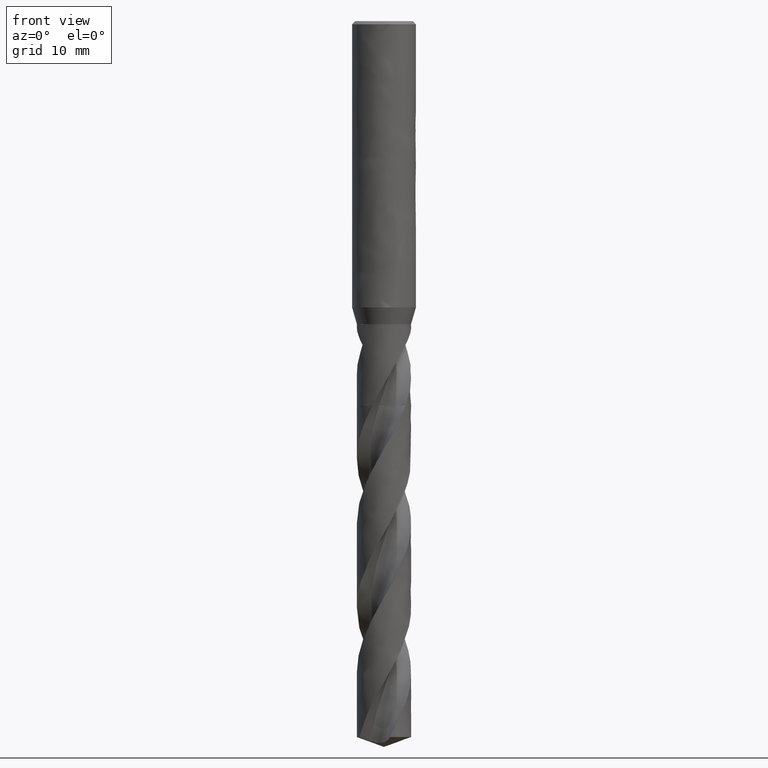
[diagram: clean part render]
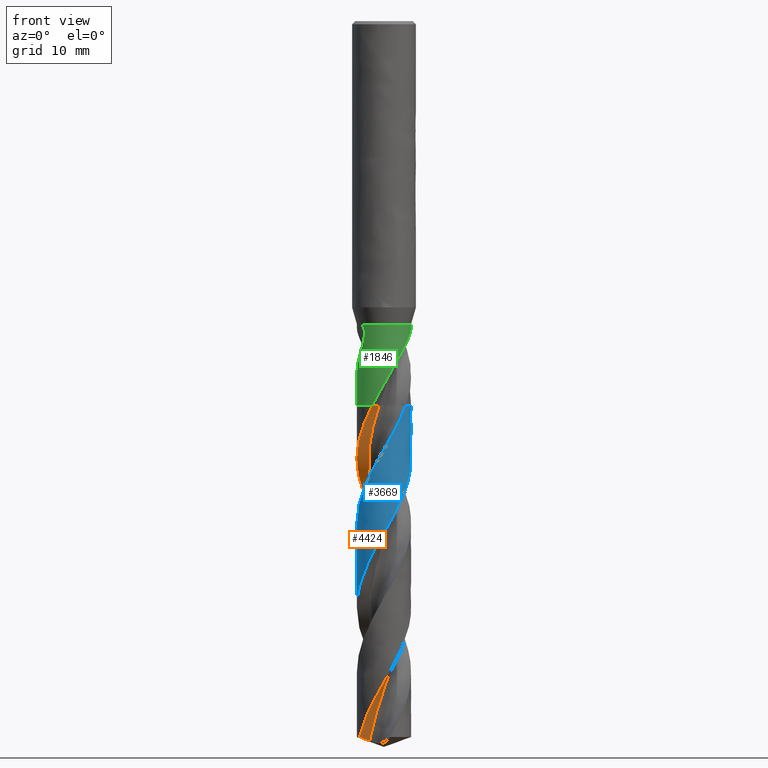
[diagram: same view with three faces highlighted in distinct colors, each labeled with its STEP entity id]
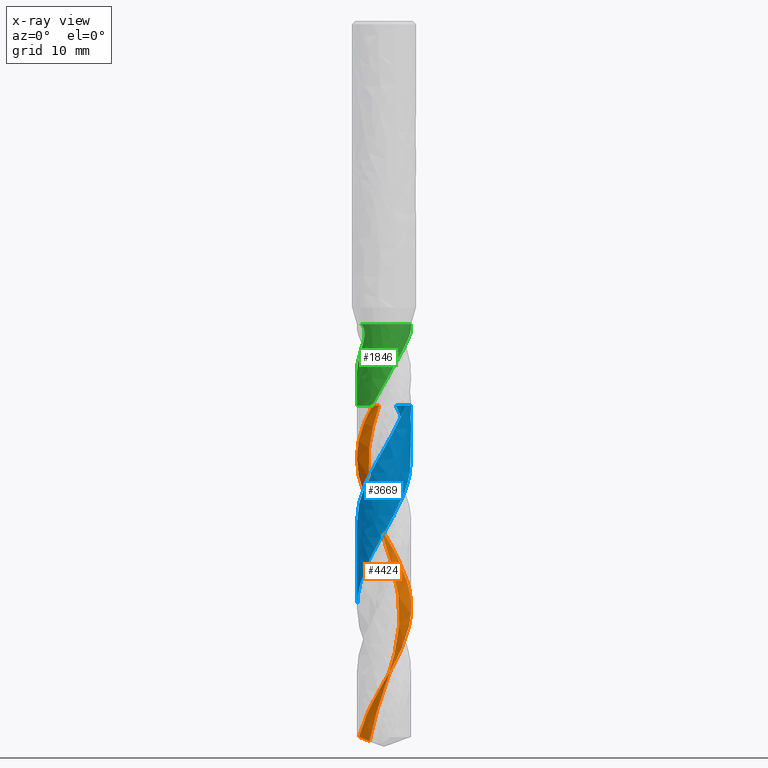
[diagram: x-ray of the same camera — body ghosted, the three highlighted faces saturated]
A machine part, front view with three faces highlighted in distinct colors.
The next image is the same camera in x-ray (body ghosted, the three faces saturated) — at least one of them is partly hidden behind the body in this view.
Their STEP definitions:

[orange] entity #4424 — the highlighted face is a freeform B-spline surface patch.
#1923 = VERTEX_POINT('', #1924);
#1924 = CARTESIAN_POINT('', (-1.47803550335968, -3.06192930205914, -48.2));
#1931 = EDGE_CURVE('', #1923, #1932, #1934, .T.);
#1932 = VERTEX_POINT('', #1933);
#1933 = CARTESIAN_POINT('', (-0.620029028907698, -1.9389502631243, -48.2));
#1934 = LINE('', #1935, #1936);
#1935 = CARTESIAN_POINT('', (-1.47803550335968, -3.06192930205914, -48.2));
#1936 = VECTOR('', #1937, 1.41324344402815);
#1937 = DIRECTION('', (0.858006474451986, 1.12297903893484, 0.));
#2108 = VERTEX_POINT('', #2109);
#2109 = CARTESIAN_POINT('', (-3.4, 3.56620488106823E-15, -54.840545495259));
#2115 = EDGE_CURVE('', #1923, #2108, #2116, .T.);
#2116 = B_SPLINE_CURVE_WITH_KNOTS('', 3, (#2117, #2118, #2119, #2120, #2121, #2122, #2123, #2124, #2125, #2126, #2127, #2128, #2129, #2130, #2131, #2132, #2133, #2134, #2135, #2136, #2137, #2138, #2139, #2140, #2141, #2142, #2143, #2144, #2145, #2146, #2147, #2148, #2149, #2150, #2151, #2152, #2153), .UNSPECIFIED., .F., .U., (4, 3, 3, 3, 3, 3, 3, 3, 3, 3, 3, 3, 4), (9.696055758028, 10.0864774600798, 10.7519653010631, 11.4172510407156, 12.0823408970207, 12.7472358605198, 13.4119371907105, 14.0764449208711, 14.7407582091935, 15.4048752632413, 16.0687933038664, 16.7325085156414, 17.3520419656143), .UNSPECIFIED.);
#2117 = CARTESIAN_POINT('', (-1.47803550335968, -3.06192930205914, -48.2));
#2118 = CARTESIAN_POINT('', (-1.53641724258497, -3.03374763135079, -48.3128447306322));
#2119 = CARTESIAN_POINT('', (-1.59400595648222, -3.00388860562371, -48.4257282871836));
#2120 = CARTESIAN_POINT('', (-1.65067499654139, -2.97241855326485, -48.5385769600763));
#2121 = CARTESIAN_POINT('', (-1.74726941463186, -2.91877671652814, -48.7309315840291));
#2122 = CARTESIAN_POINT('', (-1.8412733160713, -2.86040538075607, -48.9233434291403));
#2123 = CARTESIAN_POINT('', (-1.93218148944507, -2.79761946873513, -49.1157021120124));
#2124 = CARTESIAN_POINT('', (-2.02306205500742, -2.73485262410445, -49.3080023776702));
#2125 = CARTESIAN_POINT('', (-2.11090128010656, -2.66763784950384, -49.5003633180743));
#2126 = CARTESIAN_POINT('', (-2.19523259532896, -2.59633469575963, -49.692671497029));
#2127 = CARTESIAN_POINT('', (-2.27953908046809, -2.52505253615313, -49.8849230537422));
#2128 = CARTESIAN_POINT('', (-2.36038982449094, -2.44964202037128, -50.0772343847301));
#2129 = CARTESIAN_POINT('', (-2.43735521240544, -2.3705061840375, -50.2694926465662));
#2130 = CARTESIAN_POINT('', (-2.5142980469758, -2.29139353705934, -50.4616945705229));
#2131 = CARTESIAN_POINT('', (-2.58740275843134, -2.2085115513637, -50.653956425618));
#2132 = CARTESIAN_POINT('', (-2.65628165088641, -2.12230247400416, -50.8461653833469));
#2133 = CARTESIAN_POINT('', (-2.72514048416137, -2.03611850278886, -51.0383183652324));
#2134 = CARTESIAN_POINT('', (-2.78981621155559, -1.94655902919033, -51.2305312561471));
#2135 = CARTESIAN_POINT('', (-2.84996656302383, -1.85410101926678, -51.4226911788186));
#2136 = CARTESIAN_POINT('', (-2.91009939518029, -1.76166993854088, -51.6147951332453));
#2137 = CARTESIAN_POINT('', (-2.96574441183021, -1.66628835212283, -51.806958980708));
#2138 = CARTESIAN_POINT('', (-3.01660775754488, -1.56846346375045, -51.9990698933896));
#2139 = CARTESIAN_POINT('', (-3.06745622011825, -1.47066719995271, -52.1911245924301));
#2140 = CARTESIAN_POINT('', (-3.11355524132572, -1.37037249067554, -52.3832391657335));
#2141 = CARTESIAN_POINT('', (-3.15466199979656, -1.26811185115493, -52.575300819364));
#2142 = CARTESIAN_POINT('', (-3.19575661557046, -1.1658814188314, -52.767305739101));
#2143 = CARTESIAN_POINT('', (-3.23188562597811, -1.06162726871453, -52.9593704847027));
#2144 = CARTESIAN_POINT('', (-3.2628593223517, -0.955902213901943, -53.1513823615742));
#2145 = CARTESIAN_POINT('', (-3.29382373695593, -0.850208841312965, -53.3433366989796));
#2146 = CARTESIAN_POINT('', (-3.31965376207257, -0.742984597074449, -53.535350788669));
#2147 = CARTESIAN_POINT('', (-3.34021440509215, -0.63479739131084, -53.7273120871055));
#2148 = CARTESIAN_POINT('', (-3.36076876677678, -0.526643237046377, -53.9192147408192));
#2149 = CARTESIAN_POINT('', (-3.37606880382875, -0.417464442971204, -54.1111770385236));
#2150 = CARTESIAN_POINT('', (-3.38603533913705, -0.307838727445689, -54.3030866579822));
#2151 = CARTESIAN_POINT('', (-3.39533842861623, -0.205510505129322, -54.4822213629232));
#2152 = CARTESIAN_POINT('', (-3.4, -0.102739595674477, -54.661404683183));
#2153 = CARTESIAN_POINT('', (-3.4, 3.2470157614885E-15, -54.840545495259));
#2379 = VERTEX_POINT('', #2380);
#2380 = CARTESIAN_POINT('', (-3.10641837743046, -1.38208714065442, -89.7625012034949));
#2387 = EDGE_CURVE('', #2379, #2108, #2388, .T.);
#2388 = B_SPLINE_CURVE_WITH_KNOTS('', 3, (#2389, #2390, #2391, #2392, #2393, #2394, #2395, #2396, #2397, #2398, #2399, #2400, #2401, #2402, #2403, #2404, #2405, #2406, #2407, #2408, #2409, #2410, #2411, #2412, #2413, #2414, #2415, #2416, #2417, #2418, #2419, #2420, #2421, #2422, #2423, #2424, #2425, #2426, #2427, #2428, #2429, #2430, #2431, #2432, #2433, #2434, #2435, #2436, #2437, #2438, #2439, #2440, #2441, #2442, #2443, #2444, #2445, #2446, #2447, #2448, #2449, #2450, #2451, #2452, #2453, #2454, #2455, #2456, #2457, #2458, #2459, #2460, #2461, #2462, #2463, #2464, #2465, #2466, #2467, #2468, #2469, #2470, #2471, #2472, #2473, #2474, #2475, #2476, #2477, #2478, #2479, #2480, #2481, #2482, #2483, #2484, #2485, #2486, #2487, #2488, #2489, #2490, #2491, #2492, #2493, #2494, #2495, #2496, #2497, #2498, #2499, #2500, #2501, #2502, #2503, #2504, #2505, #2506, #2507, #2508, #2509, #2510, #2511, #2512, #2513, #2514, #2515, #2516, #2517, #2518, #2519, #2520, #2521, #2522, #2523, #2524, #2525, #2526, #2527, #2528, #2529, #2530, #2531, #2532, #2533, #2534, #2535, #2536, #2537, #2538, #2539, #2540, #2541, #2542, #2543, #2544, #2545, #2546, #2547, #2548, #2549, #2550, #2551, #2552, #2553, #2554, #2555, #2556, #2557, #2558, #2559, #2560, #2561, #2562, #2563, #2564, #2565, #2566, #2567, #2568, #2569, #2570, #2571, #2572, #2573, #2574, #2575, #2576, #2577, #2578, #2579, #2580, #2581, #2582, #2583, #2584, #2585, #2586, #2587), .UNSPECIFIED., .F., .U., (4, 3, 3, 3, 3, 3, 3, 3, 3, 3, 3, 3, 3, 3, 3, 3, 3, 3, 3, 3, 3, 3, 3, 3, 3, 3, 3, 3, 3, 3, 3, 3, 3, 3, 3, 3, 3, 3, 3, 3, 3, 3, 3, 3, 3, 3, 3, 3, 3, 3, 3, 3, 3, 3, 3, 3, 3, 3, 3, 3, 3, 3, 3, 3, 3, 3, 4), (0., 0.665658684143706, 1.33112080664724, 1.99638968701816, 2.66146776314738, 3.32635658042333, 3.99105676015281, 4.65556804558426, 5.3198892849395, 5.98401841330459, 6.64795241296074, 7.31168725522058, 7.75439158018634, 7.8856975406057, 7.94407468603058, 8.61064976076176, 9.27699881915352, 9.94313059406263, 10.6090523876881, 11.2747702067578, 11.9402888753746, 12.6056121356499, 13.2707427233142, 13.9356824216931, 14.6004320964094, 15.2649917123102, 15.9293603333777, 16.5935361056868, 17.2575162227936, 17.9212968722078, 18.5848731614618, 18.6724239627892, 18.7308027443274, 19.3973840671119, 20.06373782596, 20.7298728324584, 21.395796433367, 22.0615146678949, 22.7270323826502, 23.3923533333696, 24.057480261298, 24.7224149476488, 25.3871582485295, 26.051710111847, 26.7160695769481, 27.380234757049, 28.044202803811, 28.7079698526785, 29.3715309471411, 29.459081461662, 29.5174741697898, 30.1840551037833, 30.8504072042736, 31.5165393164535, 32.1824587967146, 32.8481716790447, 33.5136827983592, 34.1789958924928, 34.8441136786269, 35.5090379075943, 36.1737693984404, 36.8383080547462, 37.5026528634449, 38.1668018761567, 38.830752172347, 39.4944998028693, 40.2097556515464), .UNSPECIFIED.);
#2389 = CARTESIAN_POINT('', (-3.10641837743046, -1.38208714065442, -89.7625012034949));
#2390 = CARTESIAN_POINT('', (-3.06184587137246, -1.48226957334902, -89.5696015661691));
#2391 = CARTESIAN_POINT('', (-3.01240621582055, -1.58032740417758, -89.3766503032227));
#2392 = CARTESIAN_POINT('', (-2.95835715129782, -1.67574549540348, -89.1837576266164));
#2393 = CARTESIAN_POINT('', (-2.90432404686548, -1.77113541072337, -88.9909219090821));
#2394 = CARTESIAN_POINT('', (-2.84565354606718, -1.8639413737615, -88.7980345843537));
#2395 = CARTESIAN_POINT('', (-2.78265161740104, -1.95367601617447, -88.6052059630038));
#2396 = CARTESIAN_POINT('', (-2.71966798373119, -2.04338460073518, -88.4124333367478));
#2397 = CARTESIAN_POINT('', (-2.65232006248501, -2.13007407568269, -88.2196088719757));
#2398 = CARTESIAN_POINT('', (-2.58095880687818, -2.21328977705088, -88.0268432839373));
#2399 = CARTESIAN_POINT('', (-2.50961801822941, -2.29648161151461, -87.8341329825551));
#2400 = CARTESIAN_POINT('', (-2.43422647377551, -2.3762480010103, -87.6413707543139));
#2401 = CARTESIAN_POINT('', (-2.35517697513864, -2.45217075583589, -87.4486674544712));
#2402 = CARTESIAN_POINT('', (-2.27614997133058, -2.52807190559881, -87.2560189915069));
#2403 = CARTESIAN_POINT('', (-2.19342322425954, -2.60017374395295, -87.063318596086));
#2404 = CARTESIAN_POINT('', (-2.10742782456865, -2.66809819238982, -86.8706771086403));
#2405 = CARTESIAN_POINT('', (-2.02145682288353, -2.73600336978323, -86.6780902760732));
#2406 = CARTESIAN_POINT('', (-1.93217124924991, -2.79977125253461, -86.4854515747478));
#2407 = CARTESIAN_POINT('', (-1.84003660461929, -2.85906720691576, -86.2928716916379));
#2408 = CARTESIAN_POINT('', (-1.74792814278439, -2.91834631059035, -86.1003465358214));
#2409 = CARTESIAN_POINT('', (-1.65292081235727, -2.97318910223052, -85.9077696300079));
#2410 = CARTESIAN_POINT('', (-1.55551031352072, -3.02330740490124, -85.7152514050264));
#2411 = CARTESIAN_POINT('', (-1.45812767347828, -3.07341137405049, -85.5227882390545));
#2412 = CARTESIAN_POINT('', (-1.35828850334831, -3.11882169907105, -85.3302734791632));
#2413 = CARTESIAN_POINT('', (-1.25651418325136, -3.15929930637921, -85.1378172305313));
#2414 = CARTESIAN_POINT('', (-1.15476929464667, -3.19976520821605, -84.9454166371431));
#2415 = CARTESIAN_POINT('', (-1.05103271642995, -3.23532415680738, -84.7529646239647));
#2416 = CARTESIAN_POINT('', (-0.945846695198553, -3.26578842382389, -84.560570940915));
#2417 = CARTESIAN_POINT('', (-0.84069157881931, -3.29624374009146, -84.3682337853226));
#2418 = CARTESIAN_POINT('', (-0.734027781434464, -3.32162475288345, -84.1758453815945));
#2419 = CARTESIAN_POINT('', (-0.626413337630431, -3.34179687151078, -83.9835151361158));
#2420 = CARTESIAN_POINT('', (-0.518831174463396, -3.36196293919535, -83.791242583105));
#2421 = CARTESIAN_POINT('', (-0.410237011879745, -3.37693483001121, -83.5989189285722));
#2422 = CARTESIAN_POINT('', (-0.301199360641982, -3.38663239002259, -83.4066532927939));
#2423 = CARTESIAN_POINT('', (-0.228472366798002, -3.3931005629816, -83.2784140877952));
#2424 = CARTESIAN_POINT('', (-0.155524721809614, -3.3972259183913, -83.1501602917478));
#2425 = CARTESIAN_POINT('', (-0.082526513729763, -3.3989982898689, -83.021924310408));
#2426 = CARTESIAN_POINT('', (-0.0608752686881462, -3.39952397467919, -82.9838895595809));
#2427 = CARTESIAN_POINT('', (-0.0392185378457906, -3.39984278715044, -82.9458545093792));
#2428 = CARTESIAN_POINT('', (-0.0175607785796062, -3.39995464955867, -82.9078199990337));
#2429 = CARTESIAN_POINT('', (-0.00793198367782913, -3.40000438232063, -82.8909102857617));
#2430 = CARTESIAN_POINT('', (0.00169708572229088, -3.40001321140795, -82.8740005590203));
#2431 = CARTESIAN_POINT('', (0.0113260430764361, -3.39998113535181, -82.857090895542));
#2432 = CARTESIAN_POINT('', (0.121273573419161, -3.3996148773006, -82.6640091661307));
#2433 = CARTESIAN_POINT('', (0.231241547402821, -3.3939090529141, -82.4708756370917));
#2434 = CARTESIAN_POINT('', (0.340648757853118, -3.38289202070855, -82.277800949189));
#2435 = CARTESIAN_POINT('', (0.450018871480943, -3.37187872406015, -82.0847917273317));
#2436 = CARTESIAN_POINT('', (0.558891998536599, -3.35555145656979, -81.89173057399));
#2437 = CARTESIAN_POINT('', (0.666693413201661, -3.33399458499765, -81.6987284225404));
#2438 = CARTESIAN_POINT('', (0.774459675919678, -3.31244474270254, -81.5057892053429));
#2439 = CARTESIAN_POINT('', (0.881216656263537, -3.28565638639554, -81.3127978605745));
#2440 = CARTESIAN_POINT('', (0.986401595141154, -3.25376887518198, -81.1198656966467));
#2441 = CARTESIAN_POINT('', (1.09155337711302, -3.2218914157041, -80.9269943497298));
#2442 = CARTESIAN_POINT('', (1.19519368717038, -3.18489997148421, -80.7340707315283));
#2443 = CARTESIAN_POINT('', (1.29677674760943, -3.14298744300061, -80.5412064063562));
#2444 = CARTESIAN_POINT('', (1.3983286927436, -3.10108775249508, -80.3484011563118));
#2445 = CARTESIAN_POINT('', (1.49788179548693, -3.05424642179737, -80.1555435703979));
#2446 = CARTESIAN_POINT('', (1.5949120615288, -3.00270803042686, -79.962745313776));
#2447 = CARTESIAN_POINT('', (1.69191330082558, -2.95118505684101, -79.7700047330327));
#2448 = CARTESIAN_POINT('', (1.78644765284868, -2.89493891595674, -79.5772118209947));
#2449 = CARTESIAN_POINT('', (1.87801755724294, -2.8342635824297, -79.3844782089596));
#2450 = CARTESIAN_POINT('', (1.96956057505386, -2.77360606428012, -79.1918011870056));
#2451 = CARTESIAN_POINT('', (2.05819230775346, -2.70848787339396, -78.9990718960932));
#2452 = CARTESIAN_POINT('', (2.14344609295274, -2.63924967492763, -78.8064018221601));
#2453 = CARTESIAN_POINT('', (2.22867518929717, -2.57003152732272, -78.613787544031));
#2454 = CARTESIAN_POINT('', (2.3105763476472, -2.4966567170502, -78.4211211041807));
#2455 = CARTESIAN_POINT('', (2.38871804285259, -2.41950947750788, -78.2285137578459));
#2456 = CARTESIAN_POINT('', (2.46683731176663, -2.34238437885291, -78.0359616888947));
#2457 = CARTESIAN_POINT('', (2.5412435729826, -2.26144526107738, -77.843357595999));
#2458 = CARTESIAN_POINT('', (2.61154441183073, -2.17711639216549, -77.650812447525));
#2459 = CARTESIAN_POINT('', (2.68182516040162, -2.09281162240211, -77.4583223237915));
#2460 = CARTESIAN_POINT('', (2.74804295972696, -2.00507087935349, -77.2657803285226));
#2461 = CARTESIAN_POINT('', (2.80984816857198, -1.9143545307943, -77.0732971193245));
#2462 = CARTESIAN_POINT('', (2.87163570666781, -1.82366411897853, -76.8808689430691));
#2463 = CARTESIAN_POINT('', (2.92904870309916, -1.72994763115985, -76.6883890448178));
#2464 = CARTESIAN_POINT('', (2.98178359583764, -1.63369721417205, -76.4959677830149));
#2465 = CARTESIAN_POINT('', (3.03450333253622, -1.53747445961201, -76.3036018231985));
#2466 = CARTESIAN_POINT('', (3.08257815349665, -1.43866353929492, -76.1111842689008));
#2467 = CARTESIAN_POINT('', (3.12575347546236, -1.33778369351514, -75.9188252298166));
#2468 = CARTESIAN_POINT('', (3.16891626476628, -1.23693313050456, -75.7265220275083));
#2469 = CARTESIAN_POINT('', (3.20720747548616, -1.13395623301781, -75.534167315336));
#2470 = CARTESIAN_POINT('', (3.24042394604964, -1.02939431214097, -75.3418710469273));
#2471 = CARTESIAN_POINT('', (3.27363063159003, -0.924863193477412, -75.1496314258203));
#2472 = CARTESIAN_POINT('', (3.30178488220759, -0.818687183345131, -74.9573403139061));
#2473 = CARTESIAN_POINT('', (3.32473689328953, -0.7114243391956, -74.7651076473032));
#2474 = CARTESIAN_POINT('', (3.34768200930855, -0.604193718107376, -74.5729327297284));
#2475 = CARTESIAN_POINT('', (3.36544132039445, -0.495814771203955, -74.3807062503063));
#2476 = CARTESIAN_POINT('', (3.37791975607527, -0.386856719622987, -74.1885383158542));
#2477 = CARTESIAN_POINT('', (3.39039434998227, -0.277932213287567, -73.9964295447264));
#2478 = CARTESIAN_POINT('', (3.39759850635639, -0.168366383388157, -73.8042690560844));
#2479 = CARTESIAN_POINT('', (3.39949265603006, -0.0587339901594889, -73.6121672755883));
#2480 = CARTESIAN_POINT('', (3.39974256598684, -0.0442693324644485, -73.586821787675));
#2481 = CARTESIAN_POINT('', (3.39990015744632, -0.0298029132031645, -73.561476226625));
#2482 = CARTESIAN_POINT('', (3.39996541238453, -0.0153360551929733, -73.5361308464564));
#2483 = CARTESIAN_POINT('', (3.40000892430817, -0.00568956960383953, -73.5192305738212));
#2484 = CARTESIAN_POINT('', (3.40001138220744, 0.003957165919771, -73.5023302882807));
#2485 = CARTESIAN_POINT('', (3.3999727848417, 0.0136037618241424, -73.485430066674));
#2486 = CARTESIAN_POINT('', (3.39953207192451, 0.123750642058257, -73.2924597480563));
#2487 = CARTESIAN_POINT('', (3.39373234721959, 0.233914497419123, -73.0994372104708));
#2488 = CARTESIAN_POINT('', (3.38260258991424, 0.343510871306767, -72.9064739065667));
#2489 = CARTESIAN_POINT('', (3.37147663219237, 0.453069830131304, -72.7135764783293));
#2490 = CARTESIAN_POINT('', (3.35501780356632, 0.562125614203807, -72.5206267469346));
#2491 = CARTESIAN_POINT('', (3.3333115296504, 0.670100176316839, -72.3277363588284));
#2492 = CARTESIAN_POINT('', (3.31161238152669, 0.778039292259034, -72.1349092932819));
#2493 = CARTESIAN_POINT('', (3.28465670709823, 0.884960301072809, -71.9420297754573));
#2494 = CARTESIAN_POINT('', (3.25258537103434, 0.990297129216012, -71.7492097427149));
#2495 = CARTESIAN_POINT('', (3.22052421317704, 1.09560052750783, -71.556450903623));
#2496 = CARTESIAN_POINT('', (3.1833322890756, 1.1993810747446, -71.3636394904779));
#2497 = CARTESIAN_POINT('', (3.14120443168119, 1.30108981949229, -71.1708876592123));
#2498 = CARTESIAN_POINT('', (3.09908956623599, 1.40276719794396, -70.9781952713212));
#2499 = CARTESIAN_POINT('', (3.05201784272846, 1.50243193878879, -70.7854502498822));
#2500 = CARTESIAN_POINT('', (3.00023616152611, 1.59955711841469, -70.5927648469428));
#2501 = CARTESIAN_POINT('', (2.94847007738931, 1.69665304314276, -70.4001374824214));
#2502 = CARTESIAN_POINT('', (2.8919674879089, 1.7912660545073, -70.207457480712));
#2503 = CARTESIAN_POINT('', (2.8310250241108, 1.88289599098263, -70.0148370807647));
#2504 = CARTESIAN_POINT('', (2.77010057829307, 1.9744988365546, -69.8222736301163));
#2505 = CARTESIAN_POINT('', (2.70470429393112, 2.06317236974402, -69.6296575866741));
#2506 = CARTESIAN_POINT('', (2.63517976678634, 2.14844771793961, -69.4371010831327));
#2507 = CARTESIAN_POINT('', (2.56567551458223, 2.23369819789522, -69.2446007334673));
#2508 = CARTESIAN_POINT('', (2.49200586806058, 2.31560098205931, -69.052047874171));
#2509 = CARTESIAN_POINT('', (2.41455820144141, 2.39372276837817, -68.8595544574888));
#2510 = CARTESIAN_POINT('', (2.33713291951452, 2.47182197516398, -68.667116677162));
#2511 = CARTESIAN_POINT('', (2.25588754628917, 2.54618699297454, -68.4746264983691));
#2512 = CARTESIAN_POINT('', (2.17124963931056, 2.61642408714524, -68.2821956406984));
#2513 = CARTESIAN_POINT('', (2.08663609331949, 2.68664096525629, -68.0898201696257));
#2514 = CARTESIAN_POINT('', (1.99858334469168, 2.75277262729394, -67.8973924269258));
#2515 = CARTESIAN_POINT('', (1.90755514516811, 2.81446857650653, -67.705023872454));
#2516 = CARTESIAN_POINT('', (1.816553160601, 2.87614675807535, -67.512710717664));
#2517 = CARTESIAN_POINT('', (1.72252485044662, 2.93342740810732, -67.3203454198026));
#2518 = CARTESIAN_POINT('', (1.62596579646622, 2.98600656876739, -67.1280391803282));
#2519 = CARTESIAN_POINT('', (1.52943469785062, 3.0385705069335, -66.9357886165347));
#2520 = CARTESIAN_POINT('', (1.43031825075127, 3.08646619657545, -66.7434860242835));
#2521 = CARTESIAN_POINT('', (1.32913915151815, 3.12943910563885, -66.5512423798127));
#2522 = CARTESIAN_POINT('', (1.22798964105789, 3.17239944772296, -66.3590549549919));
#2523 = CARTESIAN_POINT('', (1.12471971516301, 3.21046492585317, -66.1668155849429));
#2524 = CARTESIAN_POINT('', (1.01987414746192, 3.24343286092668, -65.9746350892935));
#2525 = CARTESIAN_POINT('', (0.91505969936398, 3.27639101066468, -65.7825116354523));
#2526 = CARTESIAN_POINT('', (0.808609362175388, 3.30427388033779, -65.5903362689149));
#2527 = CARTESIAN_POINT('', (0.70108466329252, 3.32693256542667, -65.3982197605136));
#2528 = CARTESIAN_POINT('', (0.593592514527376, 3.34958439122764, -65.2061614100521));
#2529 = CARTESIAN_POINT('', (0.484964053922129, 3.36702839465646, -65.0140511074446));
#2530 = CARTESIAN_POINT('', (0.375771995560987, 3.37917081653965, -64.8219997257211));
#2531 = CARTESIAN_POINT('', (0.266613817437552, 3.39130947085818, -64.6300079339216));
#2532 = CARTESIAN_POINT('', (0.156829231813757, 3.39815687189731, -64.437964079043));
#2533 = CARTESIAN_POINT('', (0.0469965012071278, 3.39967517990716, -64.2459792647306));
#2534 = CARTESIAN_POINT('', (0.0325051270803233, 3.3998755060694, -64.2206487120302));
#2535 = CARTESIAN_POINT('', (0.0180123029335311, 3.3999831768121, -64.1953180866107));
#2536 = CARTESIAN_POINT('', (0.00351935853931818, 3.39999817854591, -64.1699876445992));
#2537 = CARTESIAN_POINT('', (-0.00614685846184635, 3.40000818410519, -64.1530932480874));
#2538 = CARTESIAN_POINT('', (-0.015813184037147, 3.39997696768901, -64.1361988389925));
#2539 = CARTESIAN_POINT('', (-0.0254792255131934, 3.3999045294048, -64.1193044943885));
#2540 = CARTESIAN_POINT('', (-0.135821752203805, 3.39907761144374, -63.9264474003019));
#2541 = CARTESIAN_POINT('', (-0.246162574605077, 3.39287235935901, -63.733537667049));
#2542 = CARTESIAN_POINT('', (-0.355914128953318, 3.38132002815644, -63.5406875809945));
#2543 = CARTESIAN_POINT('', (-0.465628006207329, 3.36977166280451, -63.347903699295));
#2544 = CARTESIAN_POINT('', (-0.574817377030829, 3.35287312505968, -63.1550671277438));
#2545 = CARTESIAN_POINT('', (-0.682901221663721, 3.33071252458845, -62.9622902749744));
#2546 = CARTESIAN_POINT('', (-0.790949383686253, 3.30855924017889, -62.7695770652161));
#2547 = CARTESIAN_POINT('', (-0.897955696220113, 3.28113447583904, -62.5768110588521));
#2548 = CARTESIAN_POINT('', (-1.00335128067819, 3.24858218420921, -62.3841048741348));
#2549 = CARTESIAN_POINT('', (-1.10871322246247, 3.21604028339542, -62.191460201969));
#2550 = CARTESIAN_POINT('', (-1.21252640425552, 3.17835531881565, -61.9987626417768));
#2551 = CARTESIAN_POINT('', (-1.31423933302229, 3.13572558996114, -61.8061249763567));
#2552 = CARTESIAN_POINT('', (-1.41592070590092, 3.09310908675033, -61.6135470757345));
#2553 = CARTESIAN_POINT('', (-1.51556163845366, 3.04552637157697, -61.4209162405152));
#2554 = CARTESIAN_POINT('', (-1.61263303023169, 2.99322814195741, -61.2283453293645));
#2555 = CARTESIAN_POINT('', (-1.70967500179381, 2.94094576278749, -61.0358327822455));
#2556 = CARTESIAN_POINT('', (-1.80420467813147, 2.88392072633672, -60.8432672958776));
#2557 = CARTESIAN_POINT('', (-1.89572016638349, 2.82245372872027, -60.6507617223775));
#2558 = CARTESIAN_POINT('', (-1.98720842387918, 2.76100502082578, -60.4583134295898));
#2559 = CARTESIAN_POINT('', (-2.07573676084122, 2.69508174706022, -60.2658122304697));
#2560 = CARTESIAN_POINT('', (-2.16083507811505, 2.62503176460544, -60.0733708972961));
#2561 = CARTESIAN_POINT('', (-2.24590841409473, 2.55500234588532, -59.8809860568206));
#2562 = CARTESIAN_POINT('', (-2.32760260622949, 2.48080841113358, -59.6885483746567));
#2563 = CARTESIAN_POINT('', (-2.4054836689505, 2.40284171730317, -59.4961704820901));
#2564 = CARTESIAN_POINT('', (-2.48334206735828, 2.32489771270567, -59.3038485737726));
#2565 = CARTESIAN_POINT('', (-2.55743440315231, 2.24313823484345, -59.1114739127306));
#2566 = CARTESIAN_POINT('', (-2.62736681989536, 2.15799527193944, -58.9191589433949));
#2567 = CARTESIAN_POINT('', (-2.6972789656932, 2.07287698898238, -58.7268997193971));
#2568 = CARTESIAN_POINT('', (-2.76307403203132, 1.98432794408744, -58.5345878469042));
#2569 = CARTESIAN_POINT('', (-2.82440196384579, 1.89281630028485, -58.3423355562449));
#2570 = CARTESIAN_POINT('', (-2.88571210480229, 1.80133120345051, -58.1501390367994));
#2571 = CARTESIAN_POINT('', (-2.94259331138359, 1.70683207273149, -57.9578899775653));
#2572 = CARTESIAN_POINT('', (-2.99474261895785, 1.6098188240288, -57.7657003896332));
#2573 = CARTESIAN_POINT('', (-3.04687671444719, 1.51283387433615, -57.57356686389));
#2574 = CARTESIAN_POINT('', (-3.09431207632989, 1.41327969034629, -57.3813808989284));
#2575 = CARTESIAN_POINT('', (-3.13679569559412, 1.31168317977409, -57.189254307256));
#2576 = CARTESIAN_POINT('', (-3.17926679406785, 1.21011661176907, -56.9971843392151));
#2577 = CARTESIAN_POINT('', (-3.21681391752823, 1.1064494784848, -56.8050620098516));
#2578 = CARTESIAN_POINT('', (-3.24923641264959, 1.00123061015541, -56.6129989834184));
#2579 = CARTESIAN_POINT('', (-3.28164920680729, 0.896043223808381, -56.4209934231498));
#2580 = CARTESIAN_POINT('', (-3.30895943121588, 0.789243390022299, -56.2289355402093));
#2581 = CARTESIAN_POINT('', (-3.33102068177046, 0.68139652010995, -56.0369369346941));
#2582 = CARTESIAN_POINT('', (-3.35307519829976, 0.573582569616512, -55.8449969352612));
#2583 = CARTESIAN_POINT('', (-3.36989685467768, 0.464659139213473, -55.6530045938423));
#2584 = CARTESIAN_POINT('', (-3.38139484202609, 0.355202649653069, -55.4610715685895));
#2585 = CARTESIAN_POINT('', (-3.3937850974798, 0.237252105299129, -55.2542441351591));
#2586 = CARTESIAN_POINT('', (-3.4, 0.118613606255023, -55.0473648584099));
#2587 = CARTESIAN_POINT('', (-3.4, 3.2470157614885E-15, -54.840545495259));
#3796 = EDGE_CURVE('', #3797, #1932, #3799, .T.);
#3797 = VERTEX_POINT('', #3798);
#3798 = CARTESIAN_POINT('', (-1.8092508859181, -0.932362756271744, -90.2591896559384));
#3799 = (
   BOUNDED_CURVE ()
   B_SPLINE_CURVE (3, (#3800, #3801, #3802, #3803, #3804, #3805, #3806, #3807, #3808, #3809, #3810, #3811, #3812, #3813, #3814, #3815, #3816, #3817, #3818, #3819, #3820, #3821, #3822, #3823, #3824, #3825, #3826, #3827, #3828, #3829, #3830, #3831, #3832, #3833, #3834, #3835, #3836, #3837, #3838, #3839, #3840, #3841, #3842, #3843, #3844, #3845, #3846, #3847, #3848, #3849, #3850, #3851, #3852, #3853, #3854, #3855, #3856, #3857, #3858, #3859, #3860, #3861, #3862, #3863, #3864, #3865, #3866, #3867, #3868, #3869, #3870), .UNSPECIFIED., .F., .U.)
   B_SPLINE_CURVE_WITH_KNOTS ((4, 1, 1, 1, 1, 1, 1, 1, 1, 1, 1, 1, 1, 1, 1, 1, 1, 1, 1, 1, 1, 1, 1, 1, 1, 1, 1, 1, 1, 1, 1, 1, 1, 1, 1, 1, 1, 1, 1, 1, 1, 1, 1, 1, 1, 1, 1, 1, 1, 1, 1, 1, 1, 1, 1, 1, 1, 1, 1, 1, 1, 1, 1, 1, 1, 1, 1, 1, 4), (0.790810344061619, 1.24870588235294, 1.87305882352941, 2.49741176470588, 3.12176470588235, 3.74611764705882, 4.37047058823529, 4.99482352941176, 5.61917647058824, 6.24352941176471, 6.86788235294118, 7.49223529411765, 8.11658823529412, 8.74094117647059, 9.36529411764706, 9.98964705882353, 10.614, 11.2383529411765, 11.8627058823529, 12.4870588235294, 13.1114117647059, 13.7357647058824, 14.3601176470588, 14.9844705882353, 15.6088235294118, 16.2331764705882, 16.8575294117647, 17.4818823529412, 18.1062352941176, 18.7305882352941, 19.3549411764706, 19.9792941176471, 20.6036470588235, 21.228, 21.8523529411765, 22.4767058823529, 23.1010588235294, 23.7254117647059, 24.3497647058824, 24.9741176470588, 25.5984705882353, 26.2228235294118, 26.8471764705882, 27.4715294117647, 28.0958823529412, 28.7202352941176, 29.3445882352941, 29.9689411764706, 30.5932941176471, 31.2176470588235, 31.842, 32.4663529411765, 33.0907058823529, 33.7150588235294, 34.3394117647059, 34.9637647058823, 35.5881176470588, 36.2124705882353, 36.8368235294118, 37.4611764705882, 38.0855294117647, 38.7098823529412, 39.3342352941176, 39.9585882352941, 40.5829411764706, 41.2072941176471, 41.8316470588235, 42.456, 42.85), .UNSPECIFIED.)
   CURVE ()
   GEOMETRIC_REPRESENTATION_ITEM ()
   RATIONAL_B_SPLINE_CURVE ((1., 1., 1., 1., 1., 1., 1., 1., 1., 1., 1., 1., 1., 1., 1., 1., 1., 1., 1., 1., 1., 1., 1., 1., 1., 1., 1., 1., 1., 1., 1., 1., 1., 1., 1., 1., 1., 1., 1., 1., 1., 1., 1., 1., 1., 1., 1., 1., 1., 1., 1., 1., 1., 1., 1., 1., 1., 1., 1., 1., 1., 1., 1., 1., 1., 1., 1., 1., 1., 1., 1.))
   REPRESENTATION_ITEM ('')
);
#3800 = CARTESIAN_POINT('', (-1.8092508859181, -0.93236275627174, -90.2591896559384));
#3801 = CARTESIAN_POINT('', (-1.78412420728202, -0.978150109894724, -90.1065578098413));
#3802 = CARTESIAN_POINT('', (-1.72066555427672, -1.08399423868274, -89.7458083166854));
#3803 = CARTESIAN_POINT('', (-1.60613114046913, -1.24091363054659, -89.1769411764706));
#3804 = CARTESIAN_POINT('', (-1.46356767659333, -1.39871449418297, -88.5525882352941));
#3805 = CARTESIAN_POINT('', (-1.30576451354782, -1.54046752501044, -87.9282352941176));
#3806 = CARTESIAN_POINT('', (-1.13449640719083, -1.66473011736529, -87.3038823529412));
#3807 = CARTESIAN_POINT('', (-0.951670609747661, -1.77025187169403, -86.6795294117647));
#3808 = CARTESIAN_POINT('', (-0.759307552346443, -1.85598742341664, -86.0551764705882));
#3809 = CARTESIAN_POINT('', (-0.559518817217361, -1.92110605797884, -85.4308235294118));
#3810 = CARTESIAN_POINT('', (-0.354484742290174, -1.96499934593264, -84.8064705882353));
#3811 = CARTESIAN_POINT('', (-0.146431322495657, -1.98728638194228, -84.1821176470588));
#3812 = CARTESIAN_POINT('', (0.0623932043205546, -1.98781668322188, -83.5577647058823));
#3813 = CARTESIAN_POINT('', (0.269741889856765, -1.96667070636054, -82.9334117647059));
#3814 = CARTESIAN_POINT('', (0.473392477952484, -1.924157997205, -82.3090588235294));
#3815 = CARTESIAN_POINT('', (0.671170445645086, -1.86081300312972, -81.6847058823529));
#3816 = CARTESIAN_POINT('', (0.860971452250635, -1.77738860215513, -81.0603529411765));
#3817 = CARTESIAN_POINT('', (1.0407829741521, -1.67484742490286, -80.436));
#3818 = CARTESIAN_POINT('', (1.20870491192525, -1.55435106681544, -79.8116470588235));
#3819 = CARTESIAN_POINT('', (1.3629689677041, -1.41724730823038, -79.1872941176471));
#3820 = CARTESIAN_POINT('', (1.5019566037368, -1.26505547887125, -78.5629411764706));
#3821 = CARTESIAN_POINT('', (1.62421540788957, -1.09945012086269, -77.9385882352941));
#3822 = CARTESIAN_POINT('', (1.72847370824158, -0.922243120357641, -77.3142352941176));
#3823 = CARTESIAN_POINT('', (1.81365329672282, -0.735364492140793, -76.6898823529412));
#3824 = CARTESIAN_POINT('', (1.87888014080624, -0.540842014021412, -76.0655294117647));
#3825 = CARTESIAN_POINT('', (1.92349298239051, -0.340779918346813, -75.4411764705882));
#3826 = CARTESIAN_POINT('', (1.94704974401065, -0.137336856467578, -74.8168235294118));
#3827 = CARTESIAN_POINT('', (1.94933168419152, 0.0672966416008342, -74.1924705882353));
#3828 = CARTESIAN_POINT('', (1.93034526591249, 0.270920985797876, -73.5681176470588));
#3829 = CARTESIAN_POINT('', (1.89032172457288, 0.471350394285397, -72.9437647058824));
#3830 = CARTESIAN_POINT('', (1.82971434433226, 0.666435582795205, -72.3194117647059));
#3831 = CARTESIAN_POINT('', (1.7491934740386, 0.854086048724209, -71.6950588235294));
#3832 = CARTESIAN_POINT('', (1.64963933594773, 1.03229172802168, -71.0707058823529));
#3833 = CARTESIAN_POINT('', (1.53213270187763, 1.19914380938662, -70.4463529411765));
#3834 = CARTESIAN_POINT('', (1.39794353213686, 1.35285449879825, -69.822));
#3835 = CARTESIAN_POINT('', (1.24851769232812, 1.49177553785774, -69.1976470588235));
#3836 = CARTESIAN_POINT('', (1.08546188177756, 1.61441529172617, -68.5732941176471));
#3837 = CARTESIAN_POINT('', (0.910526924707559, 1.71945423648626, -67.9489411764706));
#3838 = CARTESIAN_POINT('', (0.725589591197237, 1.80575869140551, -67.3245882352941));
#3839 = CARTESIAN_POINT('', (0.532633129316275, 1.87239265869021, -66.7002352941176));
#3840 = CARTESIAN_POINT('', (0.333726702441507, 1.91862765173844, -66.0758823529412));
#3841 = CARTESIAN_POINT('', (0.131003936556276, 1.94395041245612, -65.4515294117647));
#3842 = CARTESIAN_POINT('', (-0.0733592088105691, 1.94806843871585, -64.8271764705882));
#3843 = CARTESIAN_POINT('', (-0.277167025510011, 1.93091326432663, -64.2028235294118));
#3844 = CARTESIAN_POINT('', (-0.478226872310428, 1.89264145574923, -63.5784705882353));
#3845 = CARTESIAN_POINT('', (-0.67437199317046, 1.83363331203774, -62.9541176470588));
#3846 = CARTESIAN_POINT('', (-0.863484109905938, 1.75448927690909, -62.3297647058824));
#3847 = CARTESIAN_POINT('', (-1.04351556261578, 1.6560240942332, -61.7054117647059));
#3848 = CARTESIAN_POINT('', (-1.21251077509968, 1.53925876039107, -61.0810588235294));
#3849 = CARTESIAN_POINT('', (-1.36862682850222, 1.40541034866108, -60.4567058823529));
#3850 = CARTESIAN_POINT('', (-1.51015293450648, 1.25587980186392, -59.8323529411765));
#3851 = CARTESIAN_POINT('', (-1.63552860950948, 1.09223780972495, -59.208));
#3852 = CARTESIAN_POINT('', (-1.74336036325844, 0.916208906610551, -58.5836470588235));
#3853 = CARTESIAN_POINT('', (-1.83243672930772, 0.729653943276959, -57.9592941176471));
#3854 = CARTESIAN_POINT('', (-1.90174148025413, 0.534551102864242, -57.3349411764706));
#3855 = CARTESIAN_POINT('', (-1.95046488788676, 0.332975646413593, -56.7105882352941));
#3856 = CARTESIAN_POINT('', (-1.9780129069961, 0.127078586523914, -56.0862352941176));
#3857 = CARTESIAN_POINT('', (-1.98401418146641, -0.0809355007029486, -55.4618823529412));
#3858 = CARTESIAN_POINT('', (-1.96832479222878, -0.288831305815255, -54.8375294117647));
#3859 = CARTESIAN_POINT('', (-1.93103068856282, -0.494366030815841, -54.2131764705882));
#3860 = CARTESIAN_POINT('', (-1.87244776664078, -0.695312817080653, -53.5888235294118));
#3861 = CARTESIAN_POINT('', (-1.79311958288342, -0.889484117005077, -52.9644705882353));
#3862 = CARTESIAN_POINT('', (-1.6938127107692, -1.07475478667765, -52.3401176470588));
#3863 = CARTESIAN_POINT('', (-1.57550978164903, -1.24908461271731, -51.7157647058824));
#3864 = CARTESIAN_POINT('', (-1.4394002416665, -1.41054023479999, -51.0914117647059));
#3865 = CARTESIAN_POINT('', (-1.28686899811213, -1.55731551816032, -50.4670588235294));
#3866 = CARTESIAN_POINT('', (-1.11948270914522, -1.68775284672448, -49.8427058823529));
#3867 = CARTESIAN_POINT('', (-0.938975140650112, -1.80035509852206, -49.2183529411765));
#3868 = CARTESIAN_POINT('', (-0.770808510006324, -1.8823303433093, -48.6707843137255));
#3869 = CARTESIAN_POINT('', (-0.662469505420622, -1.92414787999464, -48.3313333333333));
#3870 = CARTESIAN_POINT('', (-0.620029028907698, -1.9389502631243, -48.2));
#4424 = ADVANCED_FACE('', (#4425), #4459, .T.);
#4425 = FACE_OUTER_BOUND('', #4426, .T.);
#4426 = EDGE_LOOP('', (#4427, #4428, #4429, #4430, #4458));
#4427 = ORIENTED_EDGE('', *, *, #1931, .F.);
#4428 = ORIENTED_EDGE('', *, *, #2115, .T.);
#4429 = ORIENTED_EDGE('', *, *, #2387, .F.);
#4430 = ORIENTED_EDGE('', *, *, #4431, .F.);
#4431 = EDGE_CURVE('', #3797, #2379, #4432, .T.);
#4432 = B_SPLINE_CURVE_WITH_KNOTS('', 3, (#4433, #4434, #4435, #4436, #4437, #4438, #4439, #4440, #4441, #4442, #4443, #4444, #4445, #4446, #4447, #4448, #4449, #4450, #4451, #4452, #4453, #4454, #4455, #4456, #4457), .UNSPECIFIED., .F., .U., (4, 3, 3, 3, 3, 3, 3, 3, 4), (0., 0.197266751812645, 0.394474841340578, 0.591645717267146, 0.788794042679565, 0.985929984602826, 1.18306067412805, 1.38019115518692, 1.46160939741514), .UNSPECIFIED.);
#4433 = CARTESIAN_POINT('', (-1.8092508859181, -0.932362756271744, -90.2591896559384));
#4434 = CARTESIAN_POINT('', (-1.86935903467488, -0.947471957023783, -90.2372233334279));
#4435 = CARTESIAN_POINT('', (-1.92925651585024, -0.963288620072119, -90.2151547380446));
#4436 = CARTESIAN_POINT('', (-1.98892904258302, -0.97980567083325, -90.1930148779174));
#4437 = CARTESIAN_POINT('', (-2.04858382417262, -0.996317809829345, -90.1708816016407));
#4438 = CARTESIAN_POINT('', (-2.10802126013048, -1.01353199288494, -90.148674107239));
#4439 = CARTESIAN_POINT('', (-2.16722508237054, -1.03144015378697, -90.1264158318174));
#4440 = CARTESIAN_POINT('', (-2.2264177327188, -1.04934493537955, -90.1041617565813));
#4441 = CARTESIAN_POINT('', (-2.2853841954668, -1.06794565639285, -90.0818540191645));
#4442 = CARTESIAN_POINT('', (-2.34410696434458, -1.08723340513629, -90.0595109198389));
#4443 = CARTESIAN_POINT('', (-2.40282301707514, -1.10651894793198, -90.0371703759027));
#4444 = CARTESIAN_POINT('', (-2.46130264243102, -1.12649373288471, -90.0147916419627));
#4445 = CARTESIAN_POINT('', (-2.51952759659458, -1.14714809912518, -89.9923894371515));
#4446 = CARTESIAN_POINT('', (-2.57774889347073, -1.16780116800174, -89.9699886394913));
#4447 = CARTESIAN_POINT('', (-2.63572263800689, -1.18913624906376, -89.9475615850895));
#4448 = CARTESIAN_POINT('', (-2.6934301936431, -1.21114300123854, -89.9251204335819));
#4449 = CARTESIAN_POINT('', (-2.75113621174614, -1.23314916707568, -89.9026798799859));
#4450 = CARTESIAN_POINT('', (-2.80858301821219, -1.25582962512043, -89.8802224795944));
#4451 = CARTESIAN_POINT('', (-2.8657518265814, -1.27917340763213, -89.8577585201583));
#4452 = CARTESIAN_POINT('', (-2.9229205744944, -1.30251716545771, -89.8352945844779));
#4453 = CARTESIAN_POINT('', (-2.97981816298952, -1.32652703866123, -89.8128213729963));
#4454 = CARTESIAN_POINT('', (-3.03642582960511, -1.35119147936731, -89.7903477747395));
#4455 = CARTESIAN_POINT('', (-3.05980575891754, -1.36137831296628, -89.7810657963424));
#4456 = CARTESIAN_POINT('', (-3.08313704683564, -1.37167714644737, -89.7717834156632));
#4457 = CARTESIAN_POINT('', (-3.10641837743046, -1.38208714065442, -89.7625012034949));
#4458 = ORIENTED_EDGE('', *, *, #3796, .T.);
#4459 = B_SPLINE_SURFACE_WITH_KNOTS('', 3, 1, ((#4460, #4461), (#4462, #4463), (#4464, #4465), (#4466, #4467), (#4468, #4469), (#4470, #4471), (#4472, #4473), (#4474, #4475), (#4476, #4477), (#4478, #4479), (#4480, #4481), (#4482, #4483), (#4484, #4485), (#4486, #4487), (#4488, #4489), (#4490, #4491), (#4492, #4493), (#4494, #4495), (#4496, #4497), (#4498, #4499), (#4500, #4501), (#4502, #4503), (#4504, #4505), (#4506, #4507), (#4508, #4509), (#4510, #4511), (#4512, #4513), (#4514, #4515), (#4516, #4517), (#4518, #4519), (#4520, #4521), (#4522, #4523), (#4524, #4525), (#4526, #4527), (#4528, #4529), (#4530, #4531), (#4532, #4533), (#4534, #4535), (#4536, #4537), (#4538, #4539), (#4540, #4541), (#4542, #4543), (#4544, #4545), (#4546, #4547), (#4548, #4549), (#4550, #4551), (#4552, #4553), (#4554, #4555), (#4556, #4557), (#4558, #4559), (#4560, #4561), (#4562, #4563), (#4564, #4565), (#4566, #4567), (#4568, #4569), (#4570, #4571), (#4572, #4573), (#4574, #4575), (#4576, #4577), (#4578, #4579), (#4580, #4581), (#4582, #4583), (#4584, #4585), (#4586, #4587), (#4588, #4589), (#4590, #4591), (#4592, #4593), (#4594, #4595), (#4596, #4597), (#4598, #4599), (#4600, #4601)), .UNSPECIFIED., .F., .F., .U., (4, 1, 1, 1, 1, 1, 1, 1, 1, 1, 1, 1, 1, 1, 1, 1, 1, 1, 1, 1, 1, 1, 1, 1, 1, 1, 1, 1, 1, 1, 1, 1, 1, 1, 1, 1, 1, 1, 1, 1, 1, 1, 1, 1, 1, 1, 1, 1, 1, 1, 1, 1, 1, 1, 1, 1, 1, 1, 1, 1, 1, 1, 1, 1, 1, 1, 1, 1, 4), (2, 2), (0.790810344061607, 1.24870588235294, 1.87305882352941, 2.49741176470588, 3.12176470588235, 3.74611764705882, 4.37047058823529, 4.99482352941176, 5.61917647058824, 6.24352941176471, 6.86788235294118, 7.49223529411765, 8.11658823529412, 8.74094117647059, 9.36529411764706, 9.98964705882353, 10.614, 11.2383529411765, 11.8627058823529, 12.4870588235294, 13.1114117647059, 13.7357647058824, 14.3601176470588, 14.9844705882353, 15.6088235294118, 16.2331764705882, 16.8575294117647, 17.4818823529412, 18.1062352941176, 18.7305882352941, 19.3549411764706, 19.9792941176471, 20.6036470588235, 21.228, 21.8523529411765, 22.4767058823529, 23.1010588235294, 23.7254117647059, 24.3497647058824, 24.9741176470588, 25.5984705882353, 26.2228235294118, 26.8471764705882, 27.4715294117647, 28.0958823529412, 28.7202352941176, 29.3445882352941, 29.9689411764706, 30.5932941176471, 31.2176470588235, 31.842, 32.4663529411765, 33.0907058823529, 33.7150588235294, 34.3394117647059, 34.9637647058823, 35.5881176470588, 36.2124705882353, 36.8368235294118, 37.4611764705882, 38.0855294117647, 38.7098823529412, 39.3342352941176, 39.9585882352941, 40.5829411764706, 41.2072941176471, 41.8316470588235, 42.456, 42.85), (0., 0.174770831736493), .UNSPECIFIED.);
#4460 = CARTESIAN_POINT('', (-1.8092508859181, -0.932362756271735, -90.2591896559384));
#4461 = CARTESIAN_POINT('', (-3.37603950747753, -1.14183455072923, -90.2591896559384));
#4462 = CARTESIAN_POINT('', (-1.78412420728202, -0.978150109894721, -90.1065578098413));
#4463 = CARTESIAN_POINT('', (-3.34449182625303, -1.22767299867005, -90.1065578098413));
#4464 = CARTESIAN_POINT('', (-1.72066555427672, -1.08399423868274, -89.7458083166853));
#4465 = CARTESIAN_POINT('', (-3.26225897983466, -1.42750461076729, -89.7458083166853));
#4466 = CARTESIAN_POINT('', (-1.60613114046913, -1.24091363054659, -89.1769411764706));
#4467 = CARTESIAN_POINT('', (-3.10493076223619, -1.72910661098476, -89.1769411764706));
#4468 = CARTESIAN_POINT('', (-1.46356767659333, -1.39871449418297, -88.5525882352941));
#4469 = CARTESIAN_POINT('', (-2.89930286678581, -2.03955435317774, -88.5525882352941));
#4470 = CARTESIAN_POINT('', (-1.30576451354782, -1.54046752501044, -87.9282352941176));
#4471 = CARTESIAN_POINT('', (-2.66309799905125, -2.32619638505997, -87.9282352941176));
#4472 = CARTESIAN_POINT('', (-1.13449640719084, -1.66473011736529, -87.3038823529412));
#4473 = CARTESIAN_POINT('', (-2.39901227041346, -2.58607149763804, -87.3038823529412));
#4474 = CARTESIAN_POINT('', (-0.951670609747661, -1.77025187169403, -86.6795294117647));
#4475 = CARTESIAN_POINT('', (-2.11002139121514, -2.81651666980227, -86.6795294117647));
#4476 = CARTESIAN_POINT('', (-0.759307552346443, -1.85598742341664, -86.0551764705882));
#4477 = CARTESIAN_POINT('', (-1.79935057439819, -3.01519432498248, -86.0551764705882));
#4478 = CARTESIAN_POINT('', (-0.559518817217361, -1.92110605797884, -85.4308235294118));
#4479 = CARTESIAN_POINT('', (-1.47043890716879, -3.18011473115083, -85.4308235294118));
#4480 = CARTESIAN_POINT('', (-0.354484742290175, -1.96499934593263, -84.8064705882353));
#4481 = CARTESIAN_POINT('', (-1.12690256913924, -3.30965506867136, -84.8064705882353));
#4482 = CARTESIAN_POINT('', (-0.146431322495658, -1.98728638194228, -84.1821176470588));
#4483 = CARTESIAN_POINT('', (-0.77249620705908, -3.40257453321449, -84.1821176470588));
#4484 = CARTESIAN_POINT('', (0.062393204320554, -1.98781668322189, -83.5577647058824));
#4485 = CARTESIAN_POINT('', (-0.411073152260183, -3.45802546854118, -83.5577647058824));
#4486 = CARTESIAN_POINT('', (0.269741889856764, -1.96667070636054, -82.9334117647059));
#4487 = CARTESIAN_POINT('', (-0.0465448112119078, -3.47556040664414, -82.9334117647059));
#4488 = CARTESIAN_POINT('', (0.473392477952484, -1.924157997205, -82.3090588235294));
#4489 = CARTESIAN_POINT('', (0.317160337186853, -3.45513497582116, -82.3090588235294));
#4490 = CARTESIAN_POINT('', (0.671170445645085, -1.86081300312972, -81.6847058823529));
#4491 = CARTESIAN_POINT('', (0.676137728787268, -3.39710666696204, -81.6847058823529));
#4492 = CARTESIAN_POINT('', (0.860971452250634, -1.77738860215513, -81.0603529411765));
#4493 = CARTESIAN_POINT('', (1.02654727264126, -3.30222949216683, -81.0603529411765));
#4494 = CARTESIAN_POINT('', (1.0407829741521, -1.67484742490286, -80.436));
#4495 = CARTESIAN_POINT('', (1.36465307595724, -3.17164460920728, -80.436));
#4496 = CARTESIAN_POINT('', (1.20870491192525, -1.55435106681544, -79.8116470588235));
#4497 = CARTESIAN_POINT('', (1.68686194068742, -3.00686702479905, -79.8116470588235));
#4498 = CARTESIAN_POINT('', (1.3629689677041, -1.41724730823038, -79.1872941176471));
#4499 = CARTESIAN_POINT('', (1.98976025112369, -2.80976852750504, -79.1872941176471));
#4500 = CARTESIAN_POINT('', (1.5019566037368, -1.26505547887125, -78.5629411764706));
#4501 = CARTESIAN_POINT('', (2.27014888951779, -2.58255703734788, -78.5629411764706));
#4502 = CARTESIAN_POINT('', (1.62421540788957, -1.09945012086269, -77.9385882352941));
#4503 = CARTESIAN_POINT('', (2.52507583779648, -2.32775259345211, -77.9385882352941));
#4504 = CARTESIAN_POINT('', (1.72847370824158, -0.922243120357641, -77.3142352941176));
#4505 = CARTESIAN_POINT('', (2.75186614763861, -2.04816023298629, -77.3142352941176));
#4506 = CARTESIAN_POINT('', (1.81365329672282, -0.735364492140794, -76.6898823529412));
#4507 = CARTESIAN_POINT('', (2.94814898828839, -1.74684004404281, -76.6898823529412));
#4508 = CARTESIAN_POINT('', (1.87888014080624, -0.540842014021412, -76.0655294117647));
#4509 = CARTESIAN_POINT('', (3.11188151122685, -1.42707470162535, -76.0655294117647));
#4510 = CARTESIAN_POINT('', (1.92349298239051, -0.340779918346814, -75.4411764705882));
#4511 = CARTESIAN_POINT('', (3.24136930292258, -1.09233481938009, -75.4411764705882));
#4512 = CARTESIAN_POINT('', (1.94704974401065, -0.137336856467579, -74.8168235294117));
#4513 = CARTESIAN_POINT('', (3.3352832310232, -0.74624246990822, -74.8168235294117));
#4514 = CARTESIAN_POINT('', (1.94933168419152, 0.0672966416008335, -74.1924705882353));
#4515 = CARTESIAN_POINT('', (3.39267252520874, -0.392533243262491, -74.1924705882353));
#4516 = CARTESIAN_POINT('', (1.93034526591249, 0.270920985797875, -73.5681176470588));
#4517 = CARTESIAN_POINT('', (3.41297397116598, -0.0350172264218597, -73.5681176470588));
#4518 = CARTESIAN_POINT('', (1.89032172457288, 0.471350394285396, -72.9437647058823));
#4519 = CARTESIAN_POINT('', (3.39601713441354, 0.322460703950449, -72.9437647058823));
#4520 = CARTESIAN_POINT('', (1.82971434433226, 0.666435582795205, -72.3194117647059));
#4521 = CARTESIAN_POINT('', (3.34202556965332, 0.67606087740318, -72.3194117647059));
#4522 = CARTESIAN_POINT('', (1.7491934740386, 0.854086048724209, -71.6950588235294));
#4523 = CARTESIAN_POINT('', (3.25161401058644, 1.02198871422147, -71.6950588235294));
#4524 = CARTESIAN_POINT('', (1.64963933594773, 1.03229172802168, -71.0707058823529));
#4525 = CARTESIAN_POINT('', (3.12578157434873, 1.35653410038925, -71.0707058823529));
#4526 = CARTESIAN_POINT('', (1.53213270187763, 1.19914380938662, -70.4463529411765));
#4527 = CARTESIAN_POINT('', (2.9659010535337, 1.67610986040864, -70.4463529411765));
#4528 = CARTESIAN_POINT('', (1.39794353213686, 1.35285449879825, -69.822));
#4529 = CARTESIAN_POINT('', (2.77370440682385, 1.97728894471659, -69.822));
#4530 = CARTESIAN_POINT('', (1.24851769232812, 1.49177553785774, -69.1976470588235));
#4531 = CARTESIAN_POINT('', (2.5512645961981, 2.25683996138074, -69.1976470588235));
#4532 = CARTESIAN_POINT('', (1.08546188177756, 1.61441529172617, -68.5732941176471));
#4533 = CARTESIAN_POINT('', (2.30097395418658, 2.51176069819397, -68.5732941176471));
#4534 = CARTESIAN_POINT('', (0.910526924707559, 1.71945423648626, -67.9489411764706));
#4535 = CARTESIAN_POINT('', (2.02551929838086, 2.73930930106612, -67.9489411764706));
#4536 = CARTESIAN_POINT('', (0.725589591197238, 1.80575869140551, -67.3245882352941));
#4537 = CARTESIAN_POINT('', (1.7278540420701, 2.93703279754824, -67.3245882352941));
#4538 = CARTESIAN_POINT('', (0.532633129316276, 1.87239265869021, -66.7002352941176));
#4539 = CARTESIAN_POINT('', (1.41116757917284, 3.10279268020797, -66.7002352941176));
#4540 = CARTESIAN_POINT('', (0.333726702441507, 1.91862765173844, -66.0758823529412));
#4541 = CARTESIAN_POINT('', (1.07885224830132, 3.23478729316769, -66.0758823529412));
#4542 = CARTESIAN_POINT('', (0.131003936556277, 1.94395041245612, -65.4515294117647));
#4543 = CARTESIAN_POINT('', (0.734468204584818, 3.33157079615921, -65.4515294117647));
#4544 = CARTESIAN_POINT('', (-0.0733592088105687, 1.94806843871585, -64.8271764705882));
#4545 = CARTESIAN_POINT('', (0.381706548570965, 3.39206851365659, -64.8271764705882));
#4546 = CARTESIAN_POINT('', (-0.27716702551001, 1.93091326432663, -64.2028235294118));
#4547 = CARTESIAN_POINT('', (0.0243510789247774, 3.41558851172184, -64.2028235294118));
#4548 = CARTESIAN_POINT('', (-0.478226872310428, 1.89264145574923, -63.5784705882353));
#4549 = CARTESIAN_POINT('', (-0.333760950410061, 3.40182928181623, -63.5784705882353));
#4550 = CARTESIAN_POINT('', (-0.674371993170459, 1.83363331203774, -62.9541176470588));
#4551 = CARTESIAN_POINT('', (-0.688778677568909, 3.35088344866168, -62.9541176470588));
#4552 = CARTESIAN_POINT('', (-0.863484109905938, 1.75448927690909, -62.3297647058824));
#4553 = CARTESIAN_POINT('', (-1.03687768696534, 3.26323745793505, -62.3297647058824));
#4554 = CARTESIAN_POINT('', (-1.04351556261578, 1.6560240942332, -61.7054117647059));
#4555 = CARTESIAN_POINT('', (-1.37429986976083, 3.13976723879237, -61.7054117647059));
#4556 = CARTESIAN_POINT('', (-1.21251077509968, 1.53925876039107, -61.0810588235294));
#4557 = CARTESIAN_POINT('', (-1.6973926909458, 2.98172987558827, -61.0810588235294));
#4558 = CARTESIAN_POINT('', (-1.36862682850222, 1.40541034866108, -60.4567058823529));
#4559 = CARTESIAN_POINT('', (-2.00264746809397, 2.79075136231826, -60.4567058823529));
#4560 = CARTESIAN_POINT('', (-1.51015293450648, 1.25587980186392, -59.8323529411765));
#4561 = CARTESIAN_POINT('', (-2.28673627535423, 2.56881055190331, -59.8323529411765));
#4562 = CARTESIAN_POINT('', (-1.63552860950948, 1.09223780972495, -59.208));
#4563 = CARTESIAN_POINT('', (-2.54654709846552, 2.31821945010176, -59.208));
#4564 = CARTESIAN_POINT('', (-1.74336036325844, 0.916208906610551, -58.5836470588235));
#4565 = CARTESIAN_POINT('', (-2.77921688242358, 2.04160004021701, -58.5836470588235));
#4566 = CARTESIAN_POINT('', (-1.83243672930772, 0.729653943276959, -57.9592941176471));
#4567 = CARTESIAN_POINT('', (-2.98216213276733, 1.74185785952947, -57.9592941176471));
#4568 = CARTESIAN_POINT('', (-1.90174148025413, 0.534551102864243, -57.3349411764706));
#4569 = CARTESIAN_POINT('', (-3.15310675412461, 1.42215258118567, -57.3349411764706));
#4570 = CARTESIAN_POINT('', (-1.95046488788676, 0.332975646413594, -56.7105882352941));
#4571 = CARTESIAN_POINT('', (-3.29010683547138, 1.085865885813, -56.7105882352941));
#4572 = CARTESIAN_POINT('', (-1.9780129069961, 0.127078586523914, -56.0862352941176));
#4573 = CARTESIAN_POINT('', (-3.39157212029479, 0.736566935081977, -56.0862352941176));
#4574 = CARTESIAN_POINT('', (-1.98401418146641, -0.0809355007029481, -55.4618823529412));
#4575 = CARTESIAN_POINT('', (-3.45628393125722, 0.37797578459768, -55.4618823529412));
#4576 = CARTESIAN_POINT('', (-1.96832479222878, -0.288831305815254, -54.8375294117647));
#4577 = CARTESIAN_POINT('', (-3.48340935276685, 0.0139250953597183, -54.8375294117647));
#4578 = CARTESIAN_POINT('', (-1.93103068856282, -0.49436603081584, -54.2131764705882));
#4579 = CARTESIAN_POINT('', (-3.47251151075016, -0.351679477684704, -54.2131764705882));
#4580 = CARTESIAN_POINT('', (-1.87244776664078, -0.695312817080652, -53.5888235294118));
#4581 = CARTESIAN_POINT('', (-3.42355582664767, -0.714899828536641, -53.5888235294118));
#4582 = CARTESIAN_POINT('', (-1.79311958288342, -0.889484117005077, -52.9644705882353));
#4583 = CARTESIAN_POINT('', (-3.33691216159658, -1.07180646325978, -52.9644705882353));
#4584 = CARTESIAN_POINT('', (-1.6938127107692, -1.07475478667765, -52.3401176470588));
#4585 = CARTESIAN_POINT('', (-3.21335280760604, -1.41851969547026, -52.3401176470588));
#4586 = CARTESIAN_POINT('', (-1.57550978164903, -1.24908461271731, -51.7157647058824));
#4587 = CARTESIAN_POINT('', (-3.05404632102568, -1.7512504669322, -51.7157647058824));
#4588 = CARTESIAN_POINT('', (-1.4394002416665, -1.41054023479999, -51.0914117647059));
#4589 = CARTESIAN_POINT('', (-2.86054724383848, -2.06634071826159, -51.0914117647059));
#4590 = CARTESIAN_POINT('', (-1.28686899811213, -1.55731551816031, -50.4670588235294));
#4591 = CARTESIAN_POINT('', (-2.63478176591595, -2.36030162705317, -50.4670588235294));
#4592 = CARTESIAN_POINT('', (-1.11948270914522, -1.68775284672448, -49.8427058823529));
#4593 = CARTESIAN_POINT('', (-2.37902954738389, -2.62985405541491, -49.8427058823529));
#4594 = CARTESIAN_POINT('', (-0.938975140650112, -1.80035509852205, -49.2183529411765));
#4595 = CARTESIAN_POINT('', (-2.09590149256819, -2.87195310828742, -49.2183529411765));
#4596 = CARTESIAN_POINT('', (-0.770808510006324, -1.8823303433093, -48.6707843137255));
#4597 = CARTESIAN_POINT('', (-1.82614271554727, -3.05780142560864, -48.6707843137255));
#4598 = CARTESIAN_POINT('', (-0.662469505420621, -1.92414787999464, -48.3313333333333));
#4599 = CARTESIAN_POINT('', (-1.64948343202156, -3.15849667757978, -48.3313333333333));
#4600 = CARTESIAN_POINT('', (-0.620029028907696, -1.9389502631243, -48.2));
#4601 = CARTESIAN_POINT('', (-1.57986694909005, -3.19520869150976, -48.2));

[blue] entity #3669 — the highlighted face is a freeform B-spline surface patch.
#1940 = VERTEX_POINT('', #1941);
#1941 = CARTESIAN_POINT('', (2.70654430468537, -2.05781873030041, -48.2));
#2011 = EDGE_CURVE('', #2012, #1940, #2014, .T.);
#2012 = VERTEX_POINT('', #2013);
#2013 = CARTESIAN_POINT('', (1.47803550335967, 3.06192930205914, -48.2));
#2014 = CIRCLE('', #2015, 3.4);
#2015 = AXIS2_PLACEMENT_3D('', #2016, #2017, #2018);
#2016 = CARTESIAN_POINT('', (1.80721053810754E-31, 2.95139878594512E-15, -48.2));
#2017 = DIRECTION('', (3.74939945665464E-33, 6.12323399573677E-17, -1.));
#2018 = DIRECTION('', (-1., 6.12323399573677E-17, 0.));
#3246 = EDGE_CURVE('', #2012, #3247, #3249, .T.);
#3247 = VERTEX_POINT('', #3248);
#3248 = CARTESIAN_POINT('', (-3.4, 4.70933413384771E-15, -73.5092629340399));
#3249 = B_SPLINE_CURVE_WITH_KNOTS('', 3, (#3250, #3251, #3252, #3253, #3254, #3255, #3256, #3257, #3258, #3259, #3260, #3261, #3262, #3263, #3264, #3265, #3266, #3267, #3268, #3269, #3270, #3271, #3272, #3273, #3274, #3275, #3276, #3277, #3278, #3279, #3280, #3281, #3282, #3283, #3284, #3285, #3286, #3287, #3288, #3289, #3290, #3291, #3292, #3293, #3294, #3295, #3296, #3297, #3298, #3299, #3300, #3301, #3302, #3303, #3304, #3305, #3306, #3307, #3308, #3309, #3310, #3311, #3312, #3313, #3314, #3315, #3316, #3317, #3318, #3319, #3320, #3321, #3322, #3323, #3324, #3325, #3326, #3327, #3328, #3329, #3330, #3331, #3332, #3333, #3334, #3335, #3336, #3337, #3338, #3339, #3340, #3341, #3342, #3343, #3344, #3345, #3346, #3347, #3348, #3349, #3350, #3351, #3352, #3353, #3354, #3355, #3356, #3357, #3358, #3359, #3360, #3361, #3362, #3363, #3364, #3365, #3366, #3367, #3368, #3369, #3370, #3371, #3372, #3373, #3374, #3375, #3376, #3377, #3378, #3379, #3380, #3381, #3382, #3383, #3384, #3385, #3386, #3387, #3388, #3389, #3390, #3391, #3392, #3393, #3394, #3395, #3396, #3397), .UNSPECIFIED., .F., .U., (4, 3, 3, 3, 3, 3, 3, 3, 3, 3, 3, 3, 3, 3, 3, 3, 3, 3, 3, 3, 3, 3, 3, 3, 3, 3, 3, 3, 3, 3, 3, 3, 3, 3, 3, 3, 3, 3, 3, 3, 3, 3, 3, 3, 3, 3, 3, 3, 3, 4), (9.69605575802799, 10.0864774600798, 10.7519653010631, 11.4172510407156, 12.0823408970208, 12.7472358605198, 13.4119371907105, 14.0764449208711, 14.7407582091935, 15.4048752632413, 16.0687933038665, 16.7325085156415, 17.1752028811956, 17.3065079224937, 17.3940711049841, 18.0606623430627, 18.7270221430522, 19.3931598168745, 20.0590831620399, 20.7247986077739, 21.390311354094, 22.0556254795416, 22.7207440226043, 23.3856690404935, 24.0504016478387, 24.7149420369594, 25.3792894805911, 26.0434423172235, 26.7073979185029, 27.3711526380917, 28.0347017703823, 28.0930750010147, 28.1514712998291, 28.8180503747986, 29.4843998399413, 30.1505289086101, 30.8164452714321, 31.482155269376, 32.1476640306274, 32.8129755766459, 33.4780929023458, 34.1430180339865, 34.8077520672841, 35.4722951873693, 36.1366466714488, 36.8008048743218, 37.464767196253, 38.1285300371676, 38.7920887552847, 38.8584697076736), .UNSPECIFIED.);
#3250 = CARTESIAN_POINT('', (1.47803550335967, 3.06192930205914, -48.2));
#3251 = CARTESIAN_POINT('', (1.53641724258496, 3.03374763135079, -48.3128447306322));
#3252 = CARTESIAN_POINT('', (1.59400595648222, 3.00388860562371, -48.4257282871836));
#3253 = CARTESIAN_POINT('', (1.6506749965414, 2.97241855326485, -48.5385769600763));
#3254 = CARTESIAN_POINT('', (1.74726941463186, 2.91877671652815, -48.7309315840291));
#3255 = CARTESIAN_POINT('', (1.8412733160713, 2.86040538075607, -48.9233434291403));
#3256 = CARTESIAN_POINT('', (1.93218148944507, 2.79761946873513, -49.1157021120124));
#3257 = CARTESIAN_POINT('', (2.02306205500742, 2.73485262410445, -49.3080023776702));
#3258 = CARTESIAN_POINT('', (2.11090128010657, 2.66763784950384, -49.5003633180743));
#3259 = CARTESIAN_POINT('', (2.19523259532897, 2.59633469575963, -49.6926714970291));
#3260 = CARTESIAN_POINT('', (2.2795390804681, 2.52505253615313, -49.8849230537423));
#3261 = CARTESIAN_POINT('', (2.36038982449095, 2.44964202037128, -50.0772343847301));
#3262 = CARTESIAN_POINT('', (2.43735521240545, 2.3705061840375, -50.2694926465662));
#3263 = CARTESIAN_POINT('', (2.5142980469758, 2.29139353705933, -50.4616945705229));
#3264 = CARTESIAN_POINT('', (2.58740275843134, 2.20851155136371, -50.653956425618));
#3265 = CARTESIAN_POINT('', (2.65628165088641, 2.12230247400416, -50.8461653833469));
#3266 = CARTESIAN_POINT('', (2.72514048416137, 2.03611850278887, -51.0383183652324));
#3267 = CARTESIAN_POINT('', (2.78981621155559, 1.94655902919033, -51.2305312561471));
#3268 = CARTESIAN_POINT('', (2.84996656302383, 1.85410101926678, -51.4226911788186));
#3269 = CARTESIAN_POINT('', (2.91009939518029, 1.76166993854088, -51.6147951332453));
#3270 = CARTESIAN_POINT('', (2.96574441183022, 1.66628835212283, -51.8069589807081));
#3271 = CARTESIAN_POINT('', (3.01660775754488, 1.56846346375045, -51.9990698933896));
#3272 = CARTESIAN_POINT('', (3.06745622011825, 1.4706671999527, -52.1911245924301));
#3273 = CARTESIAN_POINT('', (3.11355524132573, 1.37037249067554, -52.3832391657335));
#3274 = CARTESIAN_POINT('', (3.15466199979656, 1.26811185115492, -52.575300819364));
#3275 = CARTESIAN_POINT('', (3.19575661557046, 1.16588141883139, -52.7673057391011));
#3276 = CARTESIAN_POINT('', (3.23188562597812, 1.06162726871452, -52.9593704847027));
#3277 = CARTESIAN_POINT('', (3.26285932235171, 0.955902213901933, -53.1513823615743));
#3278 = CARTESIAN_POINT('', (3.29382373695593, 0.850208841312953, -53.3433366989796));
#3279 = CARTESIAN_POINT('', (3.31965376207257, 0.742984597074436, -53.5353507886691));
#3280 = CARTESIAN_POINT('', (3.34021440509215, 0.634797391310826, -53.7273120871056));
#3281 = CARTESIAN_POINT('', (3.36076876677679, 0.526643237046361, -53.9192147408192));
#3282 = CARTESIAN_POINT('', (3.37606880382875, 0.417464442971196, -54.1111770385237));
#3283 = CARTESIAN_POINT('', (3.38603533913706, 0.307838727445679, -54.3030866579823));
#3284 = CARTESIAN_POINT('', (3.39268296291727, 0.23471898313064, -54.431089309907));
#3285 = CARTESIAN_POINT('', (3.3969614893669, 0.161376958222872, -54.5591100935922));
#3286 = CARTESIAN_POINT('', (3.39886135529752, 0.0879857230754832, -54.6871158900366));
#3287 = CARTESIAN_POINT('', (3.39942486365429, 0.0662175689904833, -54.7250829564742));
#3288 = CARTESIAN_POINT('', (3.39977923995637, 0.0444439978594494, -54.7630505972541));
#3289 = CARTESIAN_POINT('', (3.39992442464529, 0.0226695103698658, -54.8010179361624));
#3290 = CARTESIAN_POINT('', (3.40002124372615, 0.00814879278860077, -54.8263371546223));
#3291 = CARTESIAN_POINT('', (3.40002503606417, -0.00637251844185036, -54.8516565592327));
#3292 = CARTESIAN_POINT('', (3.39993580512087, -0.0208930863463439, -54.8769758914118));
#3293 = CARTESIAN_POINT('', (3.3992565177392, -0.131433647593312, -55.0697240819708));
#3294 = CARTESIAN_POINT('', (3.3931797473895, -0.241967278497133, -55.2625324603333));
#3295 = CARTESIAN_POINT('', (3.38173972365175, -0.35190402310257, -55.4552876940323));
#3296 = CARTESIAN_POINT('', (3.37030367184925, -0.461802598064258, -55.6479760038049));
#3297 = CARTESIAN_POINT('', (3.35350136820696, -0.571169279672903, -55.8407243094732));
#3298 = CARTESIAN_POINT('', (3.33142424383811, -0.679420714704008, -56.03341964459));
#3299 = CARTESIAN_POINT('', (3.30935447871727, -0.787636064910707, -56.2260507461257));
#3300 = CARTESIAN_POINT('', (3.28200040425304, -0.894800696454974, -56.4187417013508));
#3301 = CARTESIAN_POINT('', (3.24950962841428, -1.00034352841582, -56.6113798023038));
#3302 = CARTESIAN_POINT('', (3.21702930642705, -1.10585240215106, -56.8039559222774));
#3303 = CARTESIAN_POINT('', (3.17939645254002, -1.20980271257342, -56.9965918144235));
#3304 = CARTESIAN_POINT('', (3.13681325115301, -1.31164119613218, -57.1891749132755));
#3305 = CARTESIAN_POINT('', (3.094243344124, -1.41344788599729, -57.3816978882153));
#3306 = CARTESIAN_POINT('', (3.04670116437735, -1.5132039296838, -57.5742805979053));
#3307 = CARTESIAN_POINT('', (2.99444133602946, -1.61037917431831, -57.766810536192));
#3308 = CARTESIAN_POINT('', (2.94219741994055, -1.70752483068767, -57.9592818522763));
#3309 = CARTESIAN_POINT('', (2.88520815629966, -1.80214814147015, -58.1518128943484));
#3310 = CARTESIAN_POINT('', (2.82377797769318, -1.89374706143535, -58.3442911628686));
#3311 = CARTESIAN_POINT('', (2.76236613279366, -1.98531864389648, -58.5367119866563));
#3312 = CARTESIAN_POINT('', (2.69648027230428, -2.0739209814796, -58.7291925420857));
#3313 = CARTESIAN_POINT('', (2.6264715550721, -2.15908479926036, -58.9216203116203));
#3314 = CARTESIAN_POINT('', (2.55648341830161, -2.24422358143471, -59.113991513166));
#3315 = CARTESIAN_POINT('', (2.48233432568761, -2.32597518812349, -59.3064224534034));
#3316 = CARTESIAN_POINT('', (2.40441867358227, -2.40390741130536, -59.4988005978216));
#3317 = CARTESIAN_POINT('', (2.32652569208243, -2.48181695906016, -59.6911227672349));
#3318 = CARTESIAN_POINT('', (2.24482347119159, -2.55595424970771, -59.8835046720176));
#3319 = CARTESIAN_POINT('', (2.15974579392892, -2.62592804654018, -60.0758337848283));
#3320 = CARTESIAN_POINT('', (2.07469273574618, -2.69588159492967, -60.2681072430189));
#3321 = CARTESIAN_POINT('', (1.98621737972774, -2.76171420872063, -60.4604404123923));
#3322 = CARTESIAN_POINT('', (1.89478872652298, -2.82307911363487, -60.6527208174811));
#3323 = CARTESIAN_POINT('', (1.80338651139751, -2.88442627389066, -60.8449456215694));
#3324 = CARTESIAN_POINT('', (1.70898040788547, -2.94134342288691, -61.0372300825956));
#3325 = CARTESIAN_POINT('', (1.61207018988168, -2.9935313098237, -61.2294618396276));
#3326 = CARTESIAN_POINT('', (1.51518810920365, -3.04570404430697, -61.4216377832719));
#3327 = CARTESIAN_POINT('', (1.4157479725382, -3.09318010055599, -61.6138732916782));
#3328 = CARTESIAN_POINT('', (1.3142756488287, -3.13571036910233, -61.8060561964172));
#3329 = CARTESIAN_POINT('', (1.21283304936156, -3.17822817927614, -61.998182805104));
#3330 = CARTESIAN_POINT('', (1.10930135695084, -3.21582744966128, -62.1903688419156));
#3331 = CARTESIAN_POINT('', (1.00422766368209, -3.24831137662257, -62.3825024215058));
#3332 = CARTESIAN_POINT('', (0.899185174446266, -3.28078565673987, -62.5745789426415));
#3333 = CARTESIAN_POINT('', (0.792541188699783, -3.30816630256954, -62.7667147056384));
#3334 = CARTESIAN_POINT('', (0.68485899475821, -3.33031051965111, -62.9587982086868));
#3335 = CARTESIAN_POINT('', (0.577209380376352, -3.35244803693565, -63.150823596315));
#3336 = CARTESIAN_POINT('', (0.468459877994307, -3.36936509946171, -63.3429080073882));
#3337 = CARTESIAN_POINT('', (0.359184719584839, -3.38097416985357, -63.5349403689345));
#3338 = CARTESIAN_POINT('', (0.249943407389829, -3.39257964452348, -63.72691325156));
#3339 = CARTESIAN_POINT('', (0.140113178958995, -3.39888716833848, -63.9189449762897));
#3340 = CARTESIAN_POINT('', (0.0302736167334337, -3.39986521911246, -64.1109248007055));
#3341 = CARTESIAN_POINT('', (0.0206108957888246, -3.39995125943807, -64.1278135012132));
#3342 = CARTESIAN_POINT('', (0.010947833155558, -3.39999610569805, -64.1447022663313));
#3343 = CARTESIAN_POINT('', (0.0012848212348353, -3.39999975724034, -64.1615910191306));
#3344 = CARTESIAN_POINT('', (-0.00838200935610007, -3.40000341022566, -64.1784864460992));
#3345 = CARTESIAN_POINT('', (-0.018048832669477, -3.39996583594488, -64.1953819364424));
#3346 = CARTESIAN_POINT('', (-0.0277152561981744, -3.39988703703135, -64.2122774129484));
#3347 = CARTESIAN_POINT('', (-0.138055051439338, -3.39898756723702, -64.4051350311395));
#3348 = CARTESIAN_POINT('', (-0.24837708456056, -3.39271009517282, -64.5980523814661));
#3349 = CARTESIAN_POINT('', (-0.358094607405262, -3.38108980243756, -64.7909170343491));
#3350 = CARTESIAN_POINT('', (-0.467774336952287, -3.3694735124283, -64.9837152530742));
#3351 = CARTESIAN_POINT('', (-0.5769142507928, -3.35251127183251, -65.1765730046112));
#3352 = CARTESIAN_POINT('', (-0.684934247675883, -3.33029504344012, -65.3693782272585));
#3353 = CARTESIAN_POINT('', (-0.792918516719942, -3.30808616311157, -65.5621196791767));
#3354 = CARTESIAN_POINT('', (-0.8998470462239, -3.28061372918553, -65.7549205442998));
#3355 = CARTESIAN_POINT('', (-1.00515208156178, -3.24802544524092, -65.9476689743738));
#3356 = CARTESIAN_POINT('', (-1.11042349128899, -3.21544756726546, -66.1403558567389));
#3357 = CARTESIAN_POINT('', (-1.21413421536963, -3.17773800263275, -66.3331020957726));
#3358 = CARTESIAN_POINT('', (-1.31573434488401, -3.13509858436586, -66.5257959362746));
#3359 = CARTESIAN_POINT('', (-1.41730298891535, -3.09247237988802, -66.7184300617086));
#3360 = CARTESIAN_POINT('', (-1.51682171954475, -3.04489447743125, -66.9111235324795));
#3361 = CARTESIAN_POINT('', (-1.61376371494114, -2.99261869812033, -67.1037646014816));
#3362 = CARTESIAN_POINT('', (-1.71067640585574, -2.94035872119326, -67.2963474372415));
#3363 = CARTESIAN_POINT('', (-1.80507025629107, -2.88337334971767, -67.4889896352437));
#3364 = CARTESIAN_POINT('', (-1.89644647106062, -2.82196576563248, -67.6815794051414));
#3365 = CARTESIAN_POINT('', (-1.98779560762696, -2.76057637892004, -67.8741121034594));
#3366 = CARTESIAN_POINT('', (-2.07618165599563, -2.69473196895207, -68.0667041931374));
#3367 = CARTESIAN_POINT('', (-2.16113844851909, -2.62478201120254, -68.2592438209778));
#3368 = CARTESIAN_POINT('', (-2.24607044012724, -2.55485247351511, -68.4517272419056));
#3369 = CARTESIAN_POINT('', (-2.32762390730601, -2.48077968831274, -68.6442700804813));
#3370 = CARTESIAN_POINT('', (-2.40536954224457, -2.40295596406637, -68.8367604307959));
#3371 = CARTESIAN_POINT('', (-2.48309271159909, -2.32515472796892, -69.0291951585904));
#3372 = CARTESIAN_POINT('', (-2.55705457731176, -2.24356037216421, -69.2216893134659));
#3373 = CARTESIAN_POINT('', (-2.62686653153345, -2.15860423086526, -69.4141309746453));
#3374 = CARTESIAN_POINT('', (-2.69665842191916, -2.07367250581569, -69.6065173284211));
#3375 = CARTESIAN_POINT('', (-2.76234240861407, -1.98533273096434, -69.7989630888824));
#3376 = CARTESIAN_POINT('', (-2.82357401381058, -1.8940511578449, -69.991356383819));
#3377 = CARTESIAN_POINT('', (-2.88478803314287, -1.80279580101271, -70.1836944229389));
#3378 = CARTESIAN_POINT('', (-2.94158689345364, -1.70854867361891, -70.3760918066272));
#3379 = CARTESIAN_POINT('', (-2.99367325410268, -1.6118065788643, -70.5684367980948));
#3380 = CARTESIAN_POINT('', (-3.04574459447417, -1.51509238187595, -70.7607263225434));
#3381 = CARTESIAN_POINT('', (-3.09313564486178, -1.41582988513019, -70.9530750769418));
#3382 = CARTESIAN_POINT('', (-3.13559877723175, -1.31454186248394, -71.1453715679591));
#3383 = CARTESIAN_POINT('', (-3.17804955571128, -1.21328330778, -71.3376121137447));
#3384 = CARTESIAN_POINT('', (-3.21559940617617, -1.10994285323436, -71.5299117127208));
#3385 = CARTESIAN_POINT('', (-3.24805255158919, -1.00506448654549, -71.722159241942));
#3386 = CARTESIAN_POINT('', (-3.28049612555876, -0.900217051753794, -71.9143500713785));
#3387 = CARTESIAN_POINT('', (-3.30786456085886, -0.793772591904629, -72.106599712759));
#3388 = CARTESIAN_POINT('', (-3.33001563646019, -0.686291381944106, -72.2987975388366));
#3389 = CARTESIAN_POINT('', (-3.35216005698646, -0.57884246366691, -72.4909376209482));
#3390 = CARTESIAN_POINT('', (-3.36910303261654, -0.470295358133158, -72.6831362657688));
#3391 = CARTESIAN_POINT('', (-3.38075718860624, -0.361221305694312, -72.8752833143694));
#3392 = CARTESIAN_POINT('', (-3.3924077606669, -0.252180796110436, -73.0673712732009));
#3393 = CARTESIAN_POINT('', (-3.39877953156517, -0.142550344522739, -73.25951763376));
#3394 = CARTESIAN_POINT('', (-3.39984075569437, -0.0329064723161503, -73.4516125258799));
#3395 = CARTESIAN_POINT('', (-3.39994691821846, -0.0219379408780737, -73.4708292757166));
#3396 = CARTESIAN_POINT('', (-3.4, -0.0109689256275917, -73.4900461159565));
#3397 = CARTESIAN_POINT('', (-3.4, 4.31953465371896E-15, -73.5092629340399));
#3669 = ADVANCED_FACE('', (#3670), #3776, .T.);
#3670 = FACE_OUTER_BOUND('', #3671, .T.);
#3671 = EDGE_LOOP('', (#3672, #3673, #3688, #3769, #3775));
#3672 = ORIENTED_EDGE('', *, *, #2011, .T.);
#3673 = ORIENTED_EDGE('', *, *, #3674, .T.);
#3674 = EDGE_CURVE('', #1940, #3675, #3677, .T.);
#3675 = VERTEX_POINT('', #3676);
#3676 = CARTESIAN_POINT('', (2.07670650199843, -2.69207914158508, -49.7547794844052));
#3677 = B_SPLINE_CURVE_WITH_KNOTS('', 3, (#3678, #3679, #3680, #3681, #3682, #3683, #3684, #3685, #3686, #3687), .UNSPECIFIED., .F., .U., (4, 3, 3, 4), (4.06448001128584, 4.4693932857314, 5.13447242647182, 5.85900932511275), .UNSPECIFIED.);
#3678 = CARTESIAN_POINT('', (2.70654430468537, -2.05781873030041, -48.2));
#3679 = CARTESIAN_POINT('', (2.66573426832234, -2.11149409531967, -48.3169217330435));
#3680 = CARTESIAN_POINT('', (2.62331715148642, -2.16396688151259, -48.433884989007));
#3681 = CARTESIAN_POINT('', (2.57939230872634, -2.21511519286997, -48.5508108371741));
#3682 = CARTESIAN_POINT('', (2.5072447686882, -2.29912744219539, -48.7428641669539));
#3683 = CARTESIAN_POINT('', (2.43096554691488, -2.37963625278251, -48.9349739914612));
#3684 = CARTESIAN_POINT('', (2.35096929213514, -2.45620507845693, -49.1270302884313));
#3685 = CARTESIAN_POINT('', (2.26382141034099, -2.53961912061882, -49.3362563267283));
#3686 = CARTESIAN_POINT('', (2.17221061408155, -2.61840596925262, -49.5455441645231));
#3687 = CARTESIAN_POINT('', (2.07670650199841, -2.69207914158509, -49.7547794844052));
#3688 = ORIENTED_EDGE('', *, *, #3689, .T.);
#3689 = EDGE_CURVE('', #3675, #3690, #3692, .T.);
#3690 = VERTEX_POINT('', #3691);
#3691 = CARTESIAN_POINT('', (-3.4, 4.061771014172E-15, -62.933754630314));
#3692 = B_SPLINE_CURVE_WITH_KNOTS('', 3, (#3693, #3694, #3695, #3696, #3697, #3698, #3699, #3700, #3701, #3702, #3703, #3704, #3705, #3706, #3707, #3708, #3709, #3710, #3711, #3712, #3713, #3714, #3715, #3716, #3717, #3718, #3719, #3720, #3721, #3722, #3723, #3724, #3725, #3726, #3727, #3728, #3729, #3730, #3731, #3732, #3733, #3734, #3735, #3736, #3737, #3738, #3739, #3740, #3741, #3742, #3743, #3744, #3745, #3746, #3747, #3748, #3749, #3750, #3751, #3752, #3753, #3754, #3755, #3756, #3757, #3758, #3759, #3760, #3761, #3762, #3763, #3764, #3765, #3766, #3767, #3768), .UNSPECIFIED., .F., .U., (4, 3, 3, 3, 3, 3, 3, 3, 3, 3, 3, 3, 3, 3, 3, 3, 3, 3, 3, 3, 3, 3, 3, 3, 3, 4), (0., 0.664662705574028, 1.32912917288968, 1.99339885019058, 2.65746979782083, 3.32133917714323, 3.98500306582941, 4.42767326535416, 4.46659147409227, 4.50551635967255, 5.17212282784108, 5.83849504216514, 6.50464255546535, 7.17057340613797, 7.83629424632741, 8.50181047376976, 9.16712634360659, 9.8322450531155, 10.4971688032183, 11.1618988394438, 11.8264354741008, 12.4907780906116, 13.1549251302213, 13.8188740605795, 14.4826213249793, 15.1992695015739), .UNSPECIFIED.);
#3693 = CARTESIAN_POINT('', (2.07670650199843, -2.69207914158508, -49.7547794844052));
#3694 = CARTESIAN_POINT('', (1.98909464724031, -2.75966411916534, -49.9467240410942));
#3695 = CARTESIAN_POINT('', (1.89816148922429, -2.82298101932345, -50.1387312507682));
#3696 = CARTESIAN_POINT('', (1.80439676530082, -2.88169261257545, -50.3306880284464));
#3697 = CARTESIAN_POINT('', (1.71065972493167, -2.94038687153036, -50.5225881318694));
#3698 = CARTESIAN_POINT('', (1.61403661911896, -2.99451375232614, -50.714551145815));
#3699 = CARTESIAN_POINT('', (1.51504646655626, -3.04378616268873, -50.9064638284024));
#3700 = CARTESIAN_POINT('', (1.41608563115935, -3.09304398041371, -51.0983196736602));
#3701 = CARTESIAN_POINT('', (1.31469994102499, -3.13747970088758, -51.2902383615324));
#3702 = CARTESIAN_POINT('', (1.21143276525712, -3.17685861430148, -51.4821066405582));
#3703 = CARTESIAN_POINT('', (1.10819648394752, -3.21622574671925, -51.6739175183188));
#3704 = CARTESIAN_POINT('', (1.00301865623764, -3.25056245974967, -51.8657912856637));
#3705 = CARTESIAN_POINT('', (0.896461610702509, -3.27968848833799, -52.0576146007905));
#3706 = CARTESIAN_POINT('', (0.78993690888522, -3.30880567617772, -52.2493796909623));
#3707 = CARTESIAN_POINT('', (0.681971243112814, -3.33273248029514, -52.4412077230086));
#3708 = CARTESIAN_POINT('', (0.573140394344855, -3.35134451949817, -52.6329852266077));
#3709 = CARTESIAN_POINT('', (0.464343232505453, -3.36995079762846, -52.8247033684069));
#3710 = CARTESIAN_POINT('', (0.354618106542481, -3.38325645761846, -53.0164844919235));
#3711 = CARTESIAN_POINT('', (0.244548778767974, -3.39119387455266, -53.208215038266));
#3712 = CARTESIAN_POINT('', (0.171131478055782, -3.39648820802157, -53.3361011575069));
#3713 = CARTESIAN_POINT('', (0.0975377041327655, -3.39939746023728, -53.4640070173652));
#3714 = CARTESIAN_POINT('', (0.0239413196041262, -3.39991570678092, -53.5918987415309));
#3715 = CARTESIAN_POINT('', (0.0174709507865944, -3.39996126943046, -53.603142590388));
#3716 = CARTESIAN_POINT('', (0.0110004792572198, -3.39998836120316, -53.614386470158));
#3717 = CARTESIAN_POINT('', (0.00453002436359921, -3.39999698218678, -53.6256303584915));
#3718 = CARTESIAN_POINT('', (-0.00194154060696295, -3.40000560464943, -53.6368761758365));
#3719 = CARTESIAN_POINT('', (-0.00841310205783167, -3.39999575000227, -53.6481220245521));
#3720 = CARTESIAN_POINT('', (-0.0148845406216137, -3.39996741902779, -53.659367882258));
#3721 = CARTESIAN_POINT('', (-0.125710885790314, -3.39948223813241, -53.8519583388545));
#3722 = CARTESIAN_POINT('', (-0.236534960221112, -3.39357172820681, -54.0446124834251));
#3723 = CARTESIAN_POINT('', (-0.34676268135513, -3.38227078200717, -54.2372155370473));
#3724 = CARTESIAN_POINT('', (-0.456951667090266, -3.37097380710126, -54.4297509075493));
#3725 = CARTESIAN_POINT('', (-0.566609631660906, -3.35428351623565, -54.6223496363976));
#3726 = CARTESIAN_POINT('', (-0.675148938717167, -3.33229259077761, -54.8148976073943));
#3727 = CARTESIAN_POINT('', (-0.783651646268076, -3.31030908066997, -55.0073806511246));
#3728 = CARTESIAN_POINT('', (-0.891101069808731, -3.28301540727712, -55.1999267194097));
#3729 = CARTESIAN_POINT('', (-0.996921655927436, -3.25056106110066, -55.3924223124865));
#3730 = CARTESIAN_POINT('', (-1.10270782419456, -3.21811727061011, -55.5848552969065));
#3731 = CARTESIAN_POINT('', (-1.20692963568788, -3.18049671555122, -55.7773510880566));
#3732 = CARTESIAN_POINT('', (-1.30902943694292, -3.13790406692385, -55.9697965694206));
#3733 = CARTESIAN_POINT('', (-1.41109703961673, -3.09532485047597, -56.1621813604464));
#3734 = CARTESIAN_POINT('', (-1.51110521500707, -3.04775114180276, -56.3546288496268));
#3735 = CARTESIAN_POINT('', (-1.60851977281427, -2.99544055866005, -56.5470260944757));
#3736 = CARTESIAN_POINT('', (-1.70590438975276, -2.94314605344591, -56.7393642050352));
#3737 = CARTESIAN_POINT('', (-1.80075519839688, -2.88608634948237, -56.9317649865053));
#3738 = CARTESIAN_POINT('', (-1.89256667120337, -2.82456924061886, -57.1241155166414));
#3739 = CARTESIAN_POINT('', (-1.9843505036217, -2.76307065184566, -57.3164081385101));
#3740 = CARTESIAN_POINT('', (-2.07315131171705, -2.69708087020519, -57.5087634586621));
#3741 = CARTESIAN_POINT('', (-2.15849702648717, -2.62695462211399, -57.7010684742978));
#3742 = CARTESIAN_POINT('', (-2.24381744982824, -2.55684915530081, -57.8933165020852));
#3743 = CARTESIAN_POINT('', (-2.3257350160124, -2.48256847392987, -58.0856272846934));
#3744 = CARTESIAN_POINT('', (-2.40381547705493, -2.40451058477004, -58.2778876884369));
#3745 = CARTESIAN_POINT('', (-2.48187305117503, -2.32647557591638, -58.4700917368657));
#3746 = CARTESIAN_POINT('', (-2.55614123716376, -2.24462016152565, -58.6623586016468));
#3747 = CARTESIAN_POINT('', (-2.62622751750304, -2.15938163053912, -58.8545750157748));
#3748 = CARTESIAN_POINT('', (-2.69629337943328, -2.07416793230421, -59.0467354310204));
#3749 = CARTESIAN_POINT('', (-2.76222020455322, -1.98552395845416, -59.2389587062707));
#3750 = CARTESIAN_POINT('', (-2.82366065126222, -1.89392199588932, -59.4311314840639));
#3751 = CARTESIAN_POINT('', (-2.88508322202442, -1.80234668469011, -59.6232483496601));
#3752 = CARTESIAN_POINT('', (-2.94205719710296, -1.70776270810334, -59.8154280794718));
#3753 = CARTESIAN_POINT('', (-2.99428338885607, -1.61067283680474, -60.007557311118));
#3754 = CARTESIAN_POINT('', (-3.04649433264784, -1.5136113118694, -60.1996304487051));
#3755 = CARTESIAN_POINT('', (-3.09399001587641, -1.41399008118129, -60.3917663950288));
#3756 = CARTESIAN_POINT('', (-3.13652191835131, -1.31233770642386, -60.5838519083685));
#3757 = CARTESIAN_POINT('', (-3.17904129979041, -1.21071525727401, -60.7758808733421));
#3758 = CARTESIAN_POINT('', (-3.21662402481335, -1.10700503335393, -60.9679725129555));
#3759 = CARTESIAN_POINT('', (-3.24907429741722, -1.00175656217608, -61.1600138691283));
#3760 = CARTESIAN_POINT('', (-3.28151489038867, -0.896539485696392, -61.3519979410447));
#3761 = CARTESIAN_POINT('', (-3.30884462492354, -0.789724956823497, -61.5440444572751));
#3762 = CARTESIAN_POINT('', (-3.33092204056549, -0.681878551998178, -61.7360409411223));
#3763 = CARTESIAN_POINT('', (-3.35299275047605, -0.574064904132904, -61.927979108504));
#3764 = CARTESIAN_POINT('', (-3.36982705092419, -0.46515779437503, -62.1199793841114));
#3765 = CARTESIAN_POINT('', (-3.38133900033719, -0.355733839828266, -62.3119299824222));
#3766 = CARTESIAN_POINT('', (-3.39376845654496, -0.23758875402876, -62.5191791172266));
#3767 = CARTESIAN_POINT('', (-3.4, -0.11877201242499, -62.7264911129698));
#3768 = CARTESIAN_POINT('', (-3.4, 3.46321941715948E-15, -62.933754630314));
#3769 = ORIENTED_EDGE('', *, *, #3770, .T.);
#3770 = EDGE_CURVE('', #3690, #3247, #3771, .T.);
#3771 = LINE('', #3772, #3773);
#3772 = CARTESIAN_POINT('', (-3.4, 4.061771014172E-15, -62.933754630314));
#3773 = VECTOR('', #3774, 10.5755083037259);
#3774 = DIRECTION('', (-4.44089209850063E-16, 6.47563119675707E-16, -10.5755083037259));
#3775 = ORIENTED_EDGE('', *, *, #3246, .F.);
#3776 = (
   BOUNDED_SURFACE ()
   B_SPLINE_SURFACE (2, 1, ((#3777, #3778), (#3779, #3780), (#3781, #3782), (#3783, #3784), (#3785, #3786), (#3787, #3788), (#3789, #3790)), .UNSPECIFIED., .F., .F., .U.)
   B_SPLINE_SURFACE_WITH_KNOTS ((3, 2, 2, 3), (2, 2), (6.91877034761202, 10.6814150222053, 16.0221225333079, 21.3628300444106), (0.19705384714507, 0.686003614748864), .UNSPECIFIED.)
   GEOMETRIC_REPRESENTATION_ITEM ()
   RATIONAL_B_SPLINE_SURFACE (((0.878056340406958, 0.878056340406958), (0.793650352935095, 0.793650352935095), (1., 1.), (0.707106781186547, 0.707106781186547), (1., 1.), (0.707106781186547, 0.707106781186547), (1., 1.)))
   REPRESENTATION_ITEM ('')
   SURFACE ()
);
#3777 = CARTESIAN_POINT('', (1.47803550335967, 3.06192930205914, -48.2));
#3778 = CARTESIAN_POINT('', (1.47803550335967, 3.06192930205914, -73.5092629340399));
#3779 = CARTESIAN_POINT('', (3.4, 2.13417053234462, -48.2));
#3780 = CARTESIAN_POINT('', (3.4, 2.13417053234462, -73.5092629340399));
#3781 = CARTESIAN_POINT('', (3.4, 3.15958874180017E-15, -48.2));
#3782 = CARTESIAN_POINT('', (3.4, 4.70933413384771E-15, -73.5092629340399));
#3783 = CARTESIAN_POINT('', (3.4, -3.4, -48.2));
#3784 = CARTESIAN_POINT('', (3.4, -3.4, -73.5092629340399));
#3785 = CARTESIAN_POINT('', (4.163799117101E-16, -3.4, -48.2));
#3786 = CARTESIAN_POINT('', (4.163799117101E-16, -3.4, -73.5092629340399));
#3787 = CARTESIAN_POINT('', (-3.4, -3.4, -48.2));
#3788 = CARTESIAN_POINT('', (-3.4, -3.4, -73.5092629340399));
#3789 = CARTESIAN_POINT('', (-3.4, 3.15958874180017E-15, -48.2));
#3790 = CARTESIAN_POINT('', (-3.4, 4.70933413384771E-15, -73.5092629340399));

[green] entity #1846 — the highlighted face is a freeform B-spline surface patch.
#200 = VERTEX_POINT('', #201);
#201 = CARTESIAN_POINT('', (-2.97335371505873, -1.64898989843675, -38.));
#211 = EDGE_CURVE('', #212, #200, #214, .T.);
#212 = VERTEX_POINT('', #213);
#213 = CARTESIAN_POINT('', (3.14341850244824, 1.29573149937249, -38.));
#214 = CIRCLE('', #215, 3.4);
#215 = AXIS2_PLACEMENT_3D('', #216, #217, #218);
#216 = CARTESIAN_POINT('', (1.42477179352876E-31, 2.32682891837997E-15, -38.));
#217 = DIRECTION('', (3.74939945665464E-33, 6.12323399573677E-17, -1.));
#218 = DIRECTION('', (-1., 6.12323399573677E-17, 0.));
#851 = VERTEX_POINT('', #852);
#852 = CARTESIAN_POINT('', (-3.32634762902119, -0.70385470866158, -43.0774272784851));
#861 = EDGE_CURVE('', #851, #200, #862, .T.);
#862 = B_SPLINE_CURVE_WITH_KNOTS('', 3, (#863, #864, #865, #866, #867, #868, #869, #870, #871, #872, #873, #874, #875, #876, #877, #878, #879, #880, #881, #882, #883, #884, #885, #886, #887, #888, #889, #890, #891, #892, #893, #894, #895, #896, #897, #898, #899, #900, #901, #902, #903, #904, #905, #906, #907, #908, #909, #910, #911, #912, #913, #914, #915, #916, #917, #918, #919, #920, #921, #922, #923, #924, #925, #926, #927, #928, #929, #930, #931, #932, #933, #934, #935, #936, #937, #938, #939, #940, #941, #942, #943, #944, #945, #946, #947, #948, #949, #950, #951, #952, #953, #954, #955, #956, #957, #958, #959, #960, #961, #962, #963, #964, #965, #966, #967, #968), .UNSPECIFIED., .F., .U., (4, 3, 3, 3, 3, 3, 3, 3, 3, 3, 3, 3, 3, 3, 3, 3, 3, 3, 3, 3, 3, 3, 3, 3, 3, 3, 3, 3, 3, 3, 3, 3, 3, 3, 3, 4), (0., 0.131417570762355, 0.427263686456991, 0.72294433915688, 0.9199432208377, 1.11687420722128, 1.31373680221321, 1.51052989787879, 1.80535687163739, 2.09992704617841, 2.39425909527776, 2.68837798777603, 2.98233180133461, 3.27619514677414, 3.47247730138347, 3.66879265621481, 3.86518038535076, 4.06169200841392, 4.25840216196008, 4.45541342195961, 4.65286847639182, 4.69181938919999, 4.73077836641991, 4.86274291641866, 4.99500014840057, 5.12758906277685, 5.21581120362673, 5.30411356019574, 5.39247366484233, 5.48085856717977, 5.56922844911031, 5.65754301365561, 5.74576838825501, 5.83388183614454, 5.9662510866965, 6.01992466382923), .UNSPECIFIED.);
#863 = CARTESIAN_POINT('', (-3.32634762902119, -0.703854708661578, -43.0774272784851));
#864 = CARTESIAN_POINT('', (-3.32137907966852, -0.727335580715938, -43.0407814701919));
#865 = CARTESIAN_POINT('', (-3.31613484517636, -0.750890880142405, -43.0042195925221));
#866 = CARTESIAN_POINT('', (-3.31061389891323, -0.774490550182987, -42.9677294866453));
#867 = CARTESIAN_POINT('', (-3.2981851917211, -0.827617926322106, -42.8855832711711));
#868 = CARTESIAN_POINT('', (-3.28434820997824, -0.880979973276299, -42.8037901689123));
#869 = CARTESIAN_POINT('', (-3.26912621131498, -0.934245050558672, -42.7222051588098));
#870 = CARTESIAN_POINT('', (-3.25391272612325, -0.987480337356279, -42.6406657781727));
#871 = CARTESIAN_POINT('', (-3.23731253432892, -1.04062905897528, -42.5593173329564));
#872 = CARTESIAN_POINT('', (-3.21940420503843, -1.09336021721153, -42.4779980045045));
#873 = CARTESIAN_POINT('', (-3.20747268090662, -1.12849264507728, -42.4238185490082));
#874 = CARTESIAN_POINT('', (-3.19496032182098, -1.16344365958519, -42.3696459534898));
#875 = CARTESIAN_POINT('', (-3.18190483681818, -1.19811585810132, -42.3154292114711));
#876 = CARTESIAN_POINT('', (-3.16885385136395, -1.23277610690888, -42.2612311551514));
#877 = CARTESIAN_POINT('', (-3.15525935472103, -1.2671597361588, -42.2069835000373));
#878 = CARTESIAN_POINT('', (-3.14117008186811, -1.30117274670856, -42.1526355664853));
#879 = CARTESIAN_POINT('', (-3.12708570202363, -1.33517394501298, -42.0983065072144));
#880 = CARTESIAN_POINT('', (-3.11250563810803, -1.36880794081637, -42.0438723120589));
#881 = CARTESIAN_POINT('', (-3.09748724226103, -1.40198886729899, -41.9892868577058));
#882 = CARTESIAN_POINT('', (-3.08247414842884, -1.43515807976332, -41.934720673912));
#883 = CARTESIAN_POINT('', (-3.06702157806444, -1.46787785532933, -41.87999804487));
#884 = CARTESIAN_POINT('', (-3.05119522293604, -1.50006923557959, -41.825077196582));
#885 = CARTESIAN_POINT('', (-3.0274848566127, -1.54829698050224, -41.7427971377098));
#886 = CARTESIAN_POINT('', (-3.00292698728555, -1.5953504372967, -41.660056660389));
#887 = CARTESIAN_POINT('', (-2.97778566332634, -1.6409730477031, -41.5767224165945));
#888 = CARTESIAN_POINT('', (-2.95266623788014, -1.68655592005397, -41.493460758318));
#889 = CARTESIAN_POINT('', (-2.92695826460033, -1.73072179402806, -41.4095811617208));
#890 = CARTESIAN_POINT('', (-2.90097213490503, -1.77323452270266, -41.3249721994913));
#891 = CARTESIAN_POINT('', (-2.87500701194818, -1.81571288482162, -41.2404316336855));
#892 = CARTESIAN_POINT('', (-2.84875458700938, -1.85655669646349, -41.1551337435818));
#893 = CARTESIAN_POINT('', (-2.82257246671177, -1.89554337068837, -41.0689929174026));
#894 = CARTESIAN_POINT('', (-2.79640930762409, -1.93450181058746, -40.9829144747993));
#895 = CARTESIAN_POINT('', (-2.77030598006676, -1.97162133641402, -40.895954888535));
#896 = CARTESIAN_POINT('', (-2.74467529851718, -2.00667822674928, -40.8080580636939));
#897 = CARTESIAN_POINT('', (-2.71905900259817, -2.04171544084329, -40.7202105723537));
#898 = CARTESIAN_POINT('', (-2.69389942846645, -2.07471379098527, -40.6313773464337));
#899 = CARTESIAN_POINT('', (-2.66966599386977, -2.10544139818123, -40.5415467418131));
#900 = CARTESIAN_POINT('', (-2.64544001742858, -2.1361595485554, -40.4517437837324));
#901 = CARTESIAN_POINT('', (-2.62211989913971, -2.16463359970109, -40.3608764404554));
#902 = CARTESIAN_POINT('', (-2.60025781342469, -2.19058423798854, -40.2689869004759));
#903 = CARTESIAN_POINT('', (-2.5856553209567, -2.20791762534562, -40.2076104914302));
#904 = CARTESIAN_POINT('', (-2.57169678377407, -2.22413420674434, -40.1457462396014));
#905 = CARTESIAN_POINT('', (-2.55856965007521, -2.23913406157694, -40.0834291038621));
#906 = CARTESIAN_POINT('', (-2.54544029598217, -2.25413645356586, -40.0211014274664));
#907 = CARTESIAN_POINT('', (-2.53313486099271, -2.26793079272903, -39.9582852629136));
#908 = CARTESIAN_POINT('', (-2.52186574662179, -2.28039320206312, -39.8950406080876));
#909 = CARTESIAN_POINT('', (-2.5105924777398, -2.29286020583258, -39.8317726372662));
#910 = CARTESIAN_POINT('', (-2.50034808072, -2.30400374936044, -39.7680294697135));
#911 = CARTESIAN_POINT('', (-2.49137692204909, -2.3136639843074, -39.7039081231977));
#912 = CARTESIAN_POINT('', (-2.4824001037981, -2.32333031354779, -39.6397463248396));
#913 = CARTESIAN_POINT('', (-2.47468930466413, -2.3315216439187, -39.5751441649478));
#914 = CARTESIAN_POINT('', (-2.46852602768661, -2.33802892425088, -39.5102563627427));
#915 = CARTESIAN_POINT('', (-2.46235652411375, -2.34454277871587, -39.4453030061113));
#916 = CARTESIAN_POINT('', (-2.45772964245376, -2.34937882661879, -39.3799788628885));
#917 = CARTESIAN_POINT('', (-2.4549738650621, -2.35225494406156, -39.3145299113962));
#918 = CARTESIAN_POINT('', (-2.45221386937087, -2.35513546400977, -39.2489807764548));
#919 = CARTESIAN_POINT('', (-2.45132716480447, -2.35605581810109, -39.1831870407843));
#920 = CARTESIAN_POINT('', (-2.45269252430476, -2.35463359808263, -39.1175462215739));
#921 = CARTESIAN_POINT('', (-2.45406095946145, -2.35320817432177, -39.0517575375657));
#922 = CARTESIAN_POINT('', (-2.45769838486278, -2.34942600926259, -38.9859497996413));
#923 = CARTESIAN_POINT('', (-2.46401081891952, -2.34278694811278, -38.9207721084077));
#924 = CARTESIAN_POINT('', (-2.46525603935339, -2.34147729568216, -38.9079148504582));
#925 = CARTESIAN_POINT('', (-2.46660568147287, -2.34005574722832, -38.89507810116));
#926 = CARTESIAN_POINT('', (-2.4680627793427, -2.33851793177285, -38.8822684628036));
#927 = CARTESIAN_POINT('', (-2.46952017889062, -2.33697979792749, -38.8694561723349));
#928 = CARTESIAN_POINT('', (-2.47108530525419, -2.33532511136964, -38.8566690381134));
#929 = CARTESIAN_POINT('', (-2.4727611000237, -2.33354934428427, -38.8439143127391));
#930 = CARTESIAN_POINT('', (-2.4784374683072, -2.32753434283798, -38.8007106222296));
#931 = CARTESIAN_POINT('', (-2.48539459493329, -2.32012157869349, -38.7578144678627));
#932 = CARTESIAN_POINT('', (-2.49373170263281, -2.31112574198896, -38.7155707957907));
#933 = CARTESIAN_POINT('', (-2.502087301065, -2.30210995356766, -38.6732334321803));
#934 = CARTESIAN_POINT('', (-2.51185301092107, -2.29147877533628, -38.6314439216191));
#935 = CARTESIAN_POINT('', (-2.5230799576697, -2.27904969827458, -38.5906636992852));
#936 = CARTESIAN_POINT('', (-2.5343350600097, -2.26658945084905, -38.5497812059331));
#937 = CARTESIAN_POINT('', (-2.54709991274199, -2.25227670044761, -38.5097794419911));
#938 = CARTESIAN_POINT('', (-2.56133140329038, -2.23597438324291, -38.4712435822264));
#939 = CARTESIAN_POINT('', (-2.57080076631797, -2.22512713155994, -38.4456025543628));
#940 = CARTESIAN_POINT('', (-2.58093824829236, -2.21337615590102, -38.420554781887));
#941 = CARTESIAN_POINT('', (-2.59169629999907, -2.20070677023794, -38.3962948353594));
#942 = CARTESIAN_POINT('', (-2.60246413343229, -2.18802586497365, -38.3720128305476));
#943 = CARTESIAN_POINT('', (-2.61387685051083, -2.17439721011296, -38.3484695169845));
#944 = CARTESIAN_POINT('', (-2.62585283419797, -2.15983723764882, -38.3258653056641));
#945 = CARTESIAN_POINT('', (-2.63783664995282, -2.145267743237, -38.3032463116153));
#946 = CARTESIAN_POINT('', (-2.65041269307309, -2.12973085245063, -38.281515499307));
#947 = CARTESIAN_POINT('', (-2.66346453393286, -2.11328102165372, -38.2608623296674));
#948 = CARTESIAN_POINT('', (-2.6765200377072, -2.09682657431838, -38.2402033638495));
#949 = CARTESIAN_POINT('', (-2.69008406190046, -2.07941710975246, -38.2205716252984));
#950 = CARTESIAN_POINT('', (-2.70401097684838, -2.06114643756416, -38.2021268031957));
#951 = CARTESIAN_POINT('', (-2.71793552501279, -2.04287887035108, -38.1836851156638));
#952 = CARTESIAN_POINT('', (-2.73225801874198, -2.02370360065628, -38.1663829024533));
#953 = CARTESIAN_POINT('', (-2.74681530560188, -2.00374790752511, -38.1503345815622));
#954 = CARTESIAN_POINT('', (-2.76136347995616, -1.98380470616988, -38.1342963065275));
#955 = CARTESIAN_POINT('', (-2.77618210960336, -1.96303230040903, -38.1194696875362));
#956 = CARTESIAN_POINT('', (-2.79110526317689, -1.94157961718469, -38.1059165036549));
#957 = CARTESIAN_POINT('', (-2.8060133456773, -1.92014859928437, -38.0923770072977));
#958 = CARTESIAN_POINT('', (-2.8210605033924, -1.89798849947357, -38.0800755127974));
#959 = CARTESIAN_POINT('', (-2.83609159908894, -1.87525583363381, -38.069023387225));
#960 = CARTESIAN_POINT('', (-2.85110362565605, -1.8525520074845, -38.0579852828801));
#961 = CARTESIAN_POINT('', (-2.8661315948567, -1.82922878770313, -38.0481686090969));
#962 = CARTESIAN_POINT('', (-2.88104040625345, -1.80543794618794, -38.0395437836648));
#963 = CARTESIAN_POINT('', (-2.90343730750379, -1.7696979321856, -38.0265870590567));
#964 = CARTESIAN_POINT('', (-2.92563732389991, -1.7327813266544, -38.0162799067465));
#965 = CARTESIAN_POINT('', (-2.94728293990062, -1.69514697656893, -38.0084078358201));
#966 = CARTESIAN_POINT('', (-2.95605988496267, -1.67988686001066, -38.005215839157));
#967 = CARTESIAN_POINT('', (-2.96475622695285, -1.66449234222007, -38.0024191320149));
#968 = CARTESIAN_POINT('', (-2.97335371505873, -1.64898989843674, -38.));
#1103 = VERTEX_POINT('', #1104);
#1104 = CARTESIAN_POINT('', (-3.4, 2.92060751071956E-15, -44.2971403143013));
#1114 = EDGE_CURVE('', #851, #1103, #1115, .T.);
#1115 = B_SPLINE_CURVE_WITH_KNOTS('', 3, (#1116, #1117, #1118, #1119, #1120, #1121, #1122, #1123, #1124, #1125, #1126, #1127, #1128, #1129, #1130, #1131, #1132, #1133, #1134, #1135, #1136, #1137), .UNSPECIFIED., .F., .U., (4, 3, 3, 3, 3, 3, 3, 4), (0., 0.295327412946352, 0.590782599424581, 0.722113863316619, 0.919047759870932, 1.1159519909767, 1.31287365699873, 1.41135704504035), .UNSPECIFIED.);
#1116 = CARTESIAN_POINT('', (-3.32634762902119, -0.70385470866158, -43.0774272784851));
#1117 = CARTESIAN_POINT('', (-3.33751317422119, -0.651087448109502, -43.1597793695774));
#1118 = CARTESIAN_POINT('', (-3.34724134434551, -0.598906205284307, -43.2427184115299));
#1119 = CARTESIAN_POINT('', (-3.35562915364499, -0.547497016619973, -43.3262508008714));
#1120 = CARTESIAN_POINT('', (-3.36402059193377, -0.496065585748113, -43.4098193305369));
#1121 = CARTESIAN_POINT('', (-3.37107219290592, -0.445390139837996, -43.494005359212));
#1122 = CARTESIAN_POINT('', (-3.37689185956841, -0.395728908194205, -43.5788534647896));
#1123 = CARTESIAN_POINT('', (-3.37947872963601, -0.373654249779993, -43.6165688593886));
#1124 = CARTESIAN_POINT('', (-3.38182229723335, -0.351784195220002, -43.6544221116258));
#1125 = CARTESIAN_POINT('', (-3.38393651138094, -0.330111628003294, -43.6923992542169));
#1126 = CARTESIAN_POINT('', (-3.38710681841902, -0.297613173455334, -43.7493467505618));
#1127 = CARTESIAN_POINT('', (-3.38976242779139, -0.265556967134808, -43.8065786539159));
#1128 = CARTESIAN_POINT('', (-3.39194811918667, -0.233854563235593, -43.8640190410561));
#1129 = CARTESIAN_POINT('', (-3.39413348133689, -0.20215693487806, -43.9214507755728));
#1130 = CARTESIAN_POINT('', (-3.39584983392253, -0.170810097415874, -43.9790959426521));
#1131 = CARTESIAN_POINT('', (-3.39713056103603, -0.139656547555265, -44.0368517704962));
#1132 = CARTESIAN_POINT('', (-3.39841140155171, -0.108500239198662, -44.0946127123392));
#1133 = CARTESIAN_POINT('', (-3.39925715961251, -0.0775346723630012, -44.152487547254));
#1134 = CARTESIAN_POINT('', (-3.39968146268012, -0.0465397927493222, -44.2103478955944));
#1135 = CARTESIAN_POINT('', (-3.39989366281279, -0.0310388028483136, -44.2392846969781));
#1136 = CARTESIAN_POINT('', (-3.4, -0.0155255250355904, -44.2682158909968));
#1137 = CARTESIAN_POINT('', (-3.4, 3.33694114495399E-15, -44.2971403143013));
#1443 = EDGE_CURVE('', #1444, #212, #1446, .T.);
#1444 = VERTEX_POINT('', #1445);
#1445 = CARTESIAN_POINT('', (2.97756891086702, -1.64136631531117, -40.0097090320238));
#1446 = B_SPLINE_CURVE_WITH_KNOTS('', 3, (#1447, #1448, #1449, #1450, #1451, #1452, #1453, #1454, #1455, #1456, #1457, #1458, #1459, #1460, #1461, #1462, #1463, #1464, #1465, #1466, #1467, #1468, #1469, #1470, #1471, #1472, #1473, #1474, #1475, #1476, #1477, #1478, #1479, #1480, #1481, #1482, #1483, #1484, #1485, #1486, #1487, #1488, #1489, #1490, #1491, #1492, #1493, #1494, #1495, #1496, #1497, #1498, #1499, #1500, #1501), .UNSPECIFIED., .F., .U., (4, 3, 3, 3, 3, 3, 3, 3, 3, 3, 3, 3, 3, 3, 3, 3, 3, 3, 4), (0., 0.298076152081988, 0.596252224390253, 0.894489690665399, 1.19275267600265, 1.49098986741107, 1.78915402822585, 2.08719475447095, 2.21899195687136, 2.27745620586346, 2.30343612163579, 2.5028657067763, 2.70228993537489, 2.90168814195663, 3.10103130612983, 3.3002778660523, 3.49936753775767, 3.63150112045142, 3.71854528015805), .UNSPECIFIED.);
#1447 = CARTESIAN_POINT('', (2.97756891086702, -1.64136631531117, -40.0097090320238));
#1448 = CARTESIAN_POINT('', (3.00849742794184, -1.58525952790963, -39.9337642497501));
#1449 = CARTESIAN_POINT('', (3.03854676341324, -1.52699385806967, -39.8590071869283));
#1450 = CARTESIAN_POINT('', (3.06740831980742, -1.46663090093458, -39.785553264746));
#1451 = CARTESIAN_POINT('', (3.09627955108913, -1.40624770910345, -39.7120747195521));
#1452 = CARTESIAN_POINT('', (3.12398263355467, -1.34372216731433, -39.6398418591087));
#1453 = CARTESIAN_POINT('', (3.15020165130323, -1.27915188938859, -39.5689756699058));
#1454 = CARTESIAN_POINT('', (3.17642606750477, -1.21456831654796, -39.4980948894702));
#1455 = CARTESIAN_POINT('', (3.2011876612993, -1.14788497540488, -39.4285216768017));
#1456 = CARTESIAN_POINT('', (3.2241701238704, -1.07922519074636, -39.3604005838425));
#1457 = CARTESIAN_POINT('', (3.24715455296467, -1.01055953112742, -39.2922736620168));
#1458 = CARTESIAN_POINT('', (3.26838111940371, -0.93985184343541, -39.225536598899));
#1459 = CARTESIAN_POINT('', (3.28753157248707, -0.867257839342314, -39.1603606448547));
#1460 = CARTESIAN_POINT('', (3.30668036942988, -0.794670113214195, -39.0951903272589));
#1461 = CARTESIAN_POINT('', (3.32377245177451, -0.720122847950333, -39.0315095384075));
#1462 = CARTESIAN_POINT('', (3.33848898249388, -0.643809998188107, -38.9695208508177));
#1463 = CARTESIAN_POINT('', (3.35320190951457, -0.567515835473911, -38.9075473426582));
#1464 = CARTESIAN_POINT('', (3.36555771342975, -0.489366480489513, -38.8471911419201));
#1465 = CARTESIAN_POINT('', (3.37523886309972, -0.409588350690419, -38.7887128506813));
#1466 = CARTESIAN_POINT('', (3.38491600494883, -0.329843247594113, -38.7302587683975));
#1467 = CARTESIAN_POINT('', (3.39193356136911, -0.248361983309112, -38.6736005104851));
#1468 = CARTESIAN_POINT('', (3.39597390176415, -0.165412389308518, -38.6190766736568));
#1469 = CARTESIAN_POINT('', (3.39776058899821, -0.128731078780047, -38.594965575658));
#1470 = CARTESIAN_POINT('', (3.39896626708473, -0.0917454889286614, -38.5712610221804));
#1471 = CARTESIAN_POINT('', (3.39956345797029, -0.054482063409869, -38.5479986852016));
#1472 = CARTESIAN_POINT('', (3.39982836736134, -0.0379522877533958, -38.5376796872525));
#1473 = CARTESIAN_POINT('', (3.3999735852316, -0.0213661396115234, -38.5274466685437));
#1474 = CARTESIAN_POINT('', (3.39999671532037, -0.00472607772683388, -38.5173030407713));
#1475 = CARTESIAN_POINT('', (3.40000699370021, 0.0026683113855421, -38.5127954895807));
#1476 = CARTESIAN_POINT('', (3.39999316465317, 0.0100735052700774, -38.5083054946258));
#1477 = CARTESIAN_POINT('', (3.39995501808804, 0.0174892818021089, -38.5038333679513));
#1478 = CARTESIAN_POINT('', (3.39966219367221, 0.0744149951199863, -38.4695039892416));
#1479 = CARTESIAN_POINT('', (3.39793562682862, 0.131992705304705, -38.436209176248));
#1480 = CARTESIAN_POINT('', (3.39468068199848, 0.19011330112942, -38.4041072993463));
#1481 = CARTESIAN_POINT('', (3.39142582459393, 0.248232335874778, -38.372006284679));
#1482 = CARTESIAN_POINT('', (3.38663945231876, 0.306948097342431, -38.3410680090383));
#1483 = CARTESIAN_POINT('', (3.38022881471329, 0.366132708429583, -38.3114879993175));
#1484 = CARTESIAN_POINT('', (3.37381901360457, 0.425309596769317, -38.281911849366));
#1485 = CARTESIAN_POINT('', (3.36577812994927, 0.48501904077663, -38.2536611878593));
#1486 = CARTESIAN_POINT('', (3.35601813566254, 0.545107579386059, -38.2269807015615));
#1487 = CARTESIAN_POINT('', (3.34626083555046, 0.6051795309963, -38.2003075802157));
#1488 = CARTESIAN_POINT('', (3.33477231644297, 0.665707368185619, -38.1751688800588));
#1489 = CARTESIAN_POINT('', (3.3214749860584, 0.726501147272547, -38.1518751661635));
#1490 = CARTESIAN_POINT('', (3.30818409973047, 0.787265464915426, -38.1285927407003));
#1491 = CARTESIAN_POINT('', (3.29306441500439, 0.848390476405803, -38.1071162473009));
#1492 = CARTESIAN_POINT('', (3.27606013942606, 0.90963177322679, -38.0878450390052));
#1493 = CARTESIAN_POINT('', (3.25906925314027, 0.970824848197045, -38.0685890050016));
#1494 = CARTESIAN_POINT('', (3.24016156732818, 1.0322545164036, -38.051496024016));
#1495 = CARTESIAN_POINT('', (3.21932562875331, 1.09359155814778, -38.0370839297748));
#1496 = CARTESIAN_POINT('', (3.20549704995713, 1.13430026497355, -38.0275187844316));
#1497 = CARTESIAN_POINT('', (3.19080180010099, 1.17502096624951, -38.0191237026763));
#1498 = CARTESIAN_POINT('', (3.17525655214905, 1.21562569405, -38.0120865331637));
#1499 = CARTESIAN_POINT('', (3.16501598334116, 1.24237441560477, -38.0074507358559));
#1500 = CARTESIAN_POINT('', (3.15439969690707, 1.26909134293762, -38.0034013827169));
#1501 = CARTESIAN_POINT('', (3.14341850244824, 1.29573149937249, -38.));
#1623 = VERTEX_POINT('', #1624);
#1624 = CARTESIAN_POINT('', (-1.47803550335967, -3.06192930205913, -48.2));
#1631 = EDGE_CURVE('', #1444, #1623, #1632, .T.);
#1632 = B_SPLINE_CURVE_WITH_KNOTS('', 3, (#1633, #1634, #1635, #1636, #1637, #1638, #1639, #1640, #1641, #1642, #1643, #1644, #1645, #1646, #1647, #1648, #1649, #1650, #1651, #1652, #1653, #1654, #1655, #1656, #1657, #1658, #1659, #1660, #1661, #1662, #1663, #1664, #1665, #1666, #1667, #1668, #1669, #1670, #1671, #1672, #1673, #1674, #1675, #1676, #1677, #1678, #1679, #1680, #1681, #1682, #1683, #1684, #1685, #1686, #1687, #1688, #1689, #1690, #1691, #1692, #1693, #1694, #1695, #1696, #1697, #1698, #1699, #1700, #1701, #1702, #1703, #1704, #1705, #1706, #1707, #1708, #1709, #1710, #1711, #1712, #1713, #1714, #1715, #1716, #1717, #1718, #1719, #1720, #1721, #1722, #1723, #1724, #1725, #1726, #1727, #1728, #1729, #1730, #1731, #1732, #1733, #1734, #1735), .UNSPECIFIED., .F., .U., (4, 3, 3, 3, 3, 3, 3, 3, 3, 3, 3, 3, 3, 3, 3, 3, 3, 3, 3, 3, 3, 3, 3, 3, 3, 3, 3, 3, 3, 3, 3, 3, 3, 3, 4), (0., 0.294789782590651, 0.58960201291221, 0.88444334776525, 1.17932938529237, 1.47426316029281, 1.76925120156056, 2.06429999219361, 2.35941027340286, 2.654597698992, 2.94986125385574, 3.39273434620573, 3.68810577666047, 3.98354890616231, 4.27909736942576, 4.41045164314843, 4.60745647307247, 4.80440398883258, 5.00134213055705, 5.13267323571196, 5.42808070943912, 5.72340048849333, 5.85471259872338, 6.29736818686538, 6.59262844195988, 6.65100794601718, 7.09498589066711, 7.29215501508899, 7.58799311561932, 7.88383631243292, 8.0152522300846, 8.45910734550144, 8.75488348396603, 9.4207930355307, 9.69605575802799), .UNSPECIFIED.);
#1633 = CARTESIAN_POINT('', (2.97756891086702, -1.64136631531117, -40.0097090320238));
#1634 = CARTESIAN_POINT('', (2.94698138898493, -1.69685451033929, -40.0848165027119));
#1635 = CARTESIAN_POINT('', (2.91502920468982, -1.75114779758745, -40.1602726270486));
#1636 = CARTESIAN_POINT('', (2.88183189012091, -1.80417431449462, -40.236047261628));
#1637 = CARTESIAN_POINT('', (2.84863204763406, -1.85720486927914, -40.3118276663145));
#1638 = CARTESIAN_POINT('', (2.81417552032162, -1.90898645377463, -40.3879520496919));
#1639 = CARTESIAN_POINT('', (2.77858807073429, -1.95945102852128, -40.4643981035067));
#1640 = CARTESIAN_POINT('', (2.74299710787329, -2.00992058524512, -40.5408517042492));
#1641 = CARTESIAN_POINT('', (2.70626462183404, -2.05908807779555, -40.6176527932668));
#1642 = CARTESIAN_POINT('', (2.66851042409977, -2.10690581575705, -40.6947704329445));
#1643 = CARTESIAN_POINT('', (2.63075050222374, -2.15473080365437, -40.7718997648929));
#1644 = CARTESIAN_POINT('', (2.59195676771358, -2.20122047743566, -40.8493692498798));
#1645 = CARTESIAN_POINT('', (2.55225248231053, -2.24633195822428, -40.9271542036689));
#1646 = CARTESIAN_POINT('', (2.51254176939983, -2.29145074186158, -41.0049517496348));
#1647 = CARTESIAN_POINT('', (2.47190902550023, -2.33520350676519, -41.0830882166918));
#1648 = CARTESIAN_POINT('', (2.43048206781445, -2.37755271614162, -41.1615449255012));
#1649 = CARTESIAN_POINT('', (2.38904748778579, -2.41990971755041, -41.2400160699334));
#1650 = CARTESIAN_POINT('', (2.34680533783442, -2.460876317114, -41.3188276177767));
#1651 = CARTESIAN_POINT('', (2.30387576178716, -2.5004312576533, -41.39795484873));
#1652 = CARTESIAN_POINT('', (2.26093734489168, -2.53999434407378, -41.4770983750186));
#1653 = CARTESIAN_POINT('', (2.21729960080646, -2.5781557878488, -41.5565785716867));
#1654 = CARTESIAN_POINT('', (2.17308684546627, -2.61489838465312, -41.6363774253834));
#1655 = CARTESIAN_POINT('', (2.12886487582699, -2.65164863891452, -41.7161929098125));
#1656 = CARTESIAN_POINT('', (2.08405957825416, -2.68698639572915, -41.7963500950291));
#1657 = CARTESIAN_POINT('', (2.03878809701953, -2.72090850552744, -41.8768265437292));
#1658 = CARTESIAN_POINT('', (1.99350478142816, -2.75483948285862, -41.9573240296689));
#1659 = CARTESIAN_POINT('', (1.94774228250821, -2.78736371219525, -42.0381585449383));
#1660 = CARTESIAN_POINT('', (1.90161371426875, -2.81848634584331, -42.1193082338053));
#1661 = CARTESIAN_POINT('', (1.85547324940317, -2.84961700606472, -42.2004788512973));
#1662 = CARTESIAN_POINT('', (1.80895567570179, -2.87935249692574, -42.2819830635953));
#1663 = CARTESIAN_POINT('', (1.7621810127965, -2.90769979161188, -42.3638078241629));
#1664 = CARTESIAN_POINT('', (1.69202254161622, -2.95021859845617, -42.4865388017807));
#1665 = CARTESIAN_POINT('', (1.62126096538222, -2.98962777145904, -42.6100421395151));
#1666 = CARTESIAN_POINT('', (1.55027652362527, -3.02599449773068, -42.734266223853));
#1667 = CARTESIAN_POINT('', (1.5029338955362, -3.05024905766073, -42.8171166975477));
#1668 = CARTESIAN_POINT('', (1.45547962066584, -3.07315763368611, -42.9003084674627));
#1669 = CARTESIAN_POINT('', (1.40801906599039, -3.09475076699372, -42.9838251810418));
#1670 = CARTESIAN_POINT('', (1.36054699064573, -3.11634914186135, -43.0673621676338));
#1671 = CARTESIAN_POINT('', (1.31305506731013, -3.13663790861261, -43.1512366881822));
#1672 = CARTESIAN_POINT('', (1.26562946582468, -3.1556587355475, -43.2354241951519));
#1673 = CARTESIAN_POINT('', (1.21818695578222, -3.17468634394065, -43.3196417173289));
#1674 = CARTESIAN_POINT('', (1.17080089648447, -3.19244820779605, -43.4041869620813));
#1675 = CARTESIAN_POINT('', (1.12360730076434, -3.20897283155696, -43.4890700229032));
#1676 = CARTESIAN_POINT('', (1.1026324649566, -3.21631707530192, -43.5267956557233));
#1677 = CARTESIAN_POINT('', (1.08169527261928, -3.22341720577086, -43.5645906246943));
#1678 = CARTESIAN_POINT('', (1.06081195598797, -3.2302752195491, -43.6024582858119));
#1679 = CARTESIAN_POINT('', (1.02949120695861, -3.24056085243875, -43.6592521146434));
#1680 = CARTESIAN_POINT('', (0.998293888855659, -3.25030148112683, -43.7162154389326));
#1681 = CARTESIAN_POINT('', (0.967223000671425, -3.25952138618114, -43.7733286231835));
#1682 = CARTESIAN_POINT('', (0.936161151869522, -3.26873860890959, -43.8304251916266));
#1683 = CARTESIAN_POINT('', (0.905223836466841, -3.27743648476287, -43.8876755275158));
#1684 = CARTESIAN_POINT('', (0.874358928013847, -3.28565008255634, -43.9450315037629));
#1685 = CARTESIAN_POINT('', (0.843495488626106, -3.29386328941033, -44.0023847500596));
#1686 = CARTESIAN_POINT('', (0.812702605926963, -3.30159327650932, -44.0598468538181));
#1687 = CARTESIAN_POINT('', (0.781870616324745, -3.30887871329971, -44.1173421957718));
#1688 = CARTESIAN_POINT('', (0.761309849207073, -3.31373711430238, -44.1556838127583));
#1689 = CARTESIAN_POINT('', (0.740729586135261, -3.31839809199937, -44.1940404916934));
#1690 = CARTESIAN_POINT('', (0.720084931476905, -3.3228719041606, -44.2323838357924));
#1691 = CARTESIAN_POINT('', (0.673648215122459, -3.33293500038535, -44.3186308098141));
#1692 = CARTESIAN_POINT('', (0.626901552022261, -3.34204548591719, -44.4048279166936));
#1693 = CARTESIAN_POINT('', (0.579918125050154, -3.3501783487209, -44.4909823663285));
#1694 = CARTESIAN_POINT('', (0.532948645579814, -3.35830879720267, -44.5771112401505));
#1695 = CARTESIAN_POINT('', (0.485737627211514, -3.3654637503512, -44.6632064469214));
#1696 = CARTESIAN_POINT('', (0.438311003422009, -3.3716292002946, -44.7492478420925));
#1697 = CARTESIAN_POINT('', (0.417223048965212, -3.37437062941654, -44.787505615423));
#1698 = CARTESIAN_POINT('', (0.396091044230116, -3.37691661828255, -44.8257536454668));
#1699 = CARTESIAN_POINT('', (0.374914587676616, -3.37926605225857, -44.8639886075413));
#1700 = CARTESIAN_POINT('', (0.30352835518039, -3.38718603828756, -44.9928793823147));
#1701 = CARTESIAN_POINT('', (0.231624979652954, -3.39287213395873, -45.1216419602347));
#1702 = CARTESIAN_POINT('', (0.159375733256256, -3.39626255988095, -45.2502502943252));
#1703 = CARTESIAN_POINT('', (0.111184020572778, -3.39852404273464, -45.3360346615581));
#1704 = CARTESIAN_POINT('', (0.0628333003889058, -3.39976455987449, -45.4217629315373));
#1705 = CARTESIAN_POINT('', (0.0143869982494576, -3.39996956078747, -45.5074333868953));
#1706 = CARTESIAN_POINT('', (0.00480808932585254, -3.4000100940168, -45.5243723368889));
#1707 = CARTESIAN_POINT('', (-0.00477469351577878, -3.4000101616652, -45.5413092420573));
#1708 = CARTESIAN_POINT('', (-0.0143609068092316, -3.39996967109349, -45.5582440594818));
#1709 = CARTESIAN_POINT('', (-0.0872643571507467, -3.39966173903594, -45.6870338728691));
#1710 = CARTESIAN_POINT('', (-0.160375699762755, -3.39700648973091, -45.8157223831605));
#1711 = CARTESIAN_POINT('', (-0.233506481668604, -3.39197209938684, -45.9442850821749));
#1712 = CARTESIAN_POINT('', (-0.265983618000305, -3.38973634342621, -46.0013793480128));
#1713 = CARTESIAN_POINT('', (-0.298467453486095, -3.38703142809485, -46.0584533800173));
#1714 = CARTESIAN_POINT('', (-0.330942493970005, -3.38385535531365, -46.1155042563282));
#1715 = CARTESIAN_POINT('', (-0.379668958215231, -3.37908988637175, -46.2011049959517));
#1716 = CARTESIAN_POINT('', (-0.428383633371357, -3.37326246953437, -46.2866599731654));
#1717 = CARTESIAN_POINT('', (-0.477012274926839, -3.36637182877488, -46.3721716035237));
#1718 = CARTESIAN_POINT('', (-0.525641754188255, -3.3594810693131, -46.4576847069564));
#1719 = CARTESIAN_POINT('', (-0.574190647382168, -3.35152571350514, -46.5431645023507));
#1720 = CARTESIAN_POINT('', (-0.622547553642372, -3.34251919118707, -46.6286355024066));
#1721 = CARTESIAN_POINT('', (-0.6440280787294, -3.33851842183348, -46.6666024052319));
#1722 = CARTESIAN_POINT('', (-0.665470811017017, -3.33431038882133, -46.7045694336388));
#1723 = CARTESIAN_POINT('', (-0.686864624057389, -3.32989744409921, -46.7425396259751));
#1724 = CARTESIAN_POINT('', (-0.759121878170314, -3.31499279537808, -46.8707833304135));
#1725 = CARTESIAN_POINT('', (-0.830841424840326, -3.2977466669342, -46.9990802322324));
#1726 = CARTESIAN_POINT('', (-0.901893764599031, -3.27819884042707, -47.127373468793));
#1727 = CARTESIAN_POINT('', (-0.949241617429267, -3.26517256126788, -47.2128655061335));
#1728 = CARTESIAN_POINT('', (-0.996301356555287, -3.2511221436939, -47.2983676804953));
#1729 = CARTESIAN_POINT('', (-1.04304134981189, -3.23605697455755, -47.3838592313894));
#1730 = CARTESIAN_POINT('', (-1.14827163684997, -3.20213929588371, -47.5763346643771));
#1731 = CARTESIAN_POINT('', (-1.25191550294241, -3.16305816068853, -47.7688430228604));
#1732 = CARTESIAN_POINT('', (-1.35336355587633, -3.11903944919359, -47.9613040842074));
#1733 = CARTESIAN_POINT('', (-1.39529848108806, -3.10084371925032, -48.0408604677982));
#1734 = CARTESIAN_POINT('', (-1.43687407099353, -3.081798493149, -48.1204400072792));
#1735 = CARTESIAN_POINT('', (-1.47803550335967, -3.06192930205913, -48.2));
#1776 = VERTEX_POINT('', #1777);
#1777 = CARTESIAN_POINT('', (-3.4, 3.15958874180017E-15, -48.2));
#1784 = EDGE_CURVE('', #1103, #1776, #1785, .T.);
#1785 = LINE('', #1786, #1787);
#1786 = CARTESIAN_POINT('', (-3.4, 2.92060751071956E-15, -44.2971403143013));
#1787 = VECTOR('', #1788, 3.90285968569875);
#1788 = DIRECTION('', (0., 2.38981231080611E-16, -3.90285968569875));
#1846 = ADVANCED_FACE('', (#1847), #1862, .T.);
#1847 = FACE_OUTER_BOUND('', #1848, .T.);
#1848 = EDGE_LOOP('', (#1849, #1856, #1857, #1858, #1859, #1860, #1861));
#1849 = ORIENTED_EDGE('', *, *, #1850, .F.);
#1850 = EDGE_CURVE('', #1623, #1776, #1851, .T.);
#1851 = CIRCLE('', #1852, 3.4);
#1852 = AXIS2_PLACEMENT_3D('', #1853, #1854, #1855);
#1853 = CARTESIAN_POINT('', (1.80721053810754E-31, 2.95139878594512E-15, -48.2));
#1854 = DIRECTION('', (3.74939945665464E-33, 6.12323399573677E-17, -1.));
#1855 = DIRECTION('', (-1., 6.12323399573677E-17, 0.));
#1856 = ORIENTED_EDGE('', *, *, #1631, .F.);
#1857 = ORIENTED_EDGE('', *, *, #1443, .T.);
#1858 = ORIENTED_EDGE('', *, *, #211, .T.);
#1859 = ORIENTED_EDGE('', *, *, #861, .F.);
#1860 = ORIENTED_EDGE('', *, *, #1114, .T.);
#1861 = ORIENTED_EDGE('', *, *, #1784, .T.);
#1862 = (
   BOUNDED_SURFACE ()
   B_SPLINE_SURFACE (2, 1, ((#1863, #1864), (#1865, #1866), (#1867, #1868), (#1869, #1870), (#1871, #1872), (#1873, #1874), (#1875, #1876), (#1877, #1878), (#1879, #1880)), .UNSPECIFIED., .T., .F., .U.)
   B_SPLINE_SURFACE_WITH_KNOTS ((3, 2, 2, 2, 3), (2, 2), (0., 5.34070751110265, 10.6814150222053, 16.0221225333079, 21.3628300444106), (0., 0.19705384714507), .UNSPECIFIED.)
   GEOMETRIC_REPRESENTATION_ITEM ()
   RATIONAL_B_SPLINE_SURFACE (((1., 1.), (0.707106781186548, 0.707106781186548), (1., 1.), (0.707106781186548, 0.707106781186548), (1., 1.), (0.707106781186548, 0.707106781186548), (1., 1.), (0.707106781186548, 0.707106781186548), (1., 1.)))
   REPRESENTATION_ITEM ('')
   SURFACE ()
);
#1863 = CARTESIAN_POINT('', (-3.4, 2.53501887423502E-15, -38.));
#1864 = CARTESIAN_POINT('', (-3.4, 3.15958874180017E-15, -48.2));
#1865 = CARTESIAN_POINT('', (-3.4, 3.4, -38.));
#1866 = CARTESIAN_POINT('', (-3.4, 3.4, -48.2));
#1867 = CARTESIAN_POINT('', (1.23259516440783E-31, 3.4, -38.));
#1868 = CARTESIAN_POINT('', (1.4791141972894E-31, 3.4, -48.2));
#1869 = CARTESIAN_POINT('', (3.4, 3.4, -38.));
#1870 = CARTESIAN_POINT('', (3.4, 3.4, -48.2));
#1871 = CARTESIAN_POINT('', (3.4, 2.53501887423502E-15, -38.));
#1872 = CARTESIAN_POINT('', (3.4, 3.15958874180017E-15, -48.2));
#1873 = CARTESIAN_POINT('', (3.4, -3.4, -38.));
#1874 = CARTESIAN_POINT('', (3.4, -3.4, -48.2));
#1875 = CARTESIAN_POINT('', (4.163799117101E-16, -3.4, -38.));
#1876 = CARTESIAN_POINT('', (4.163799117101E-16, -3.4, -48.2));
#1877 = CARTESIAN_POINT('', (-3.4, -3.4, -38.));
#1878 = CARTESIAN_POINT('', (-3.4, -3.4, -48.2));
#1879 = CARTESIAN_POINT('', (-3.4, 2.53501887423502E-15, -38.));
#1880 = CARTESIAN_POINT('', (-3.4, 3.15958874180017E-15, -48.2));